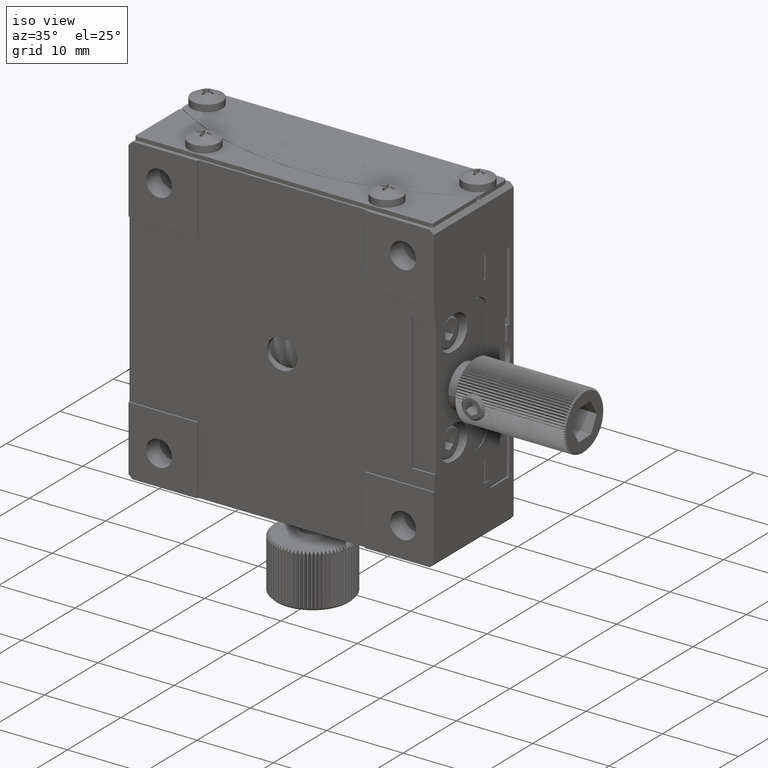
[diagram: clean part render]
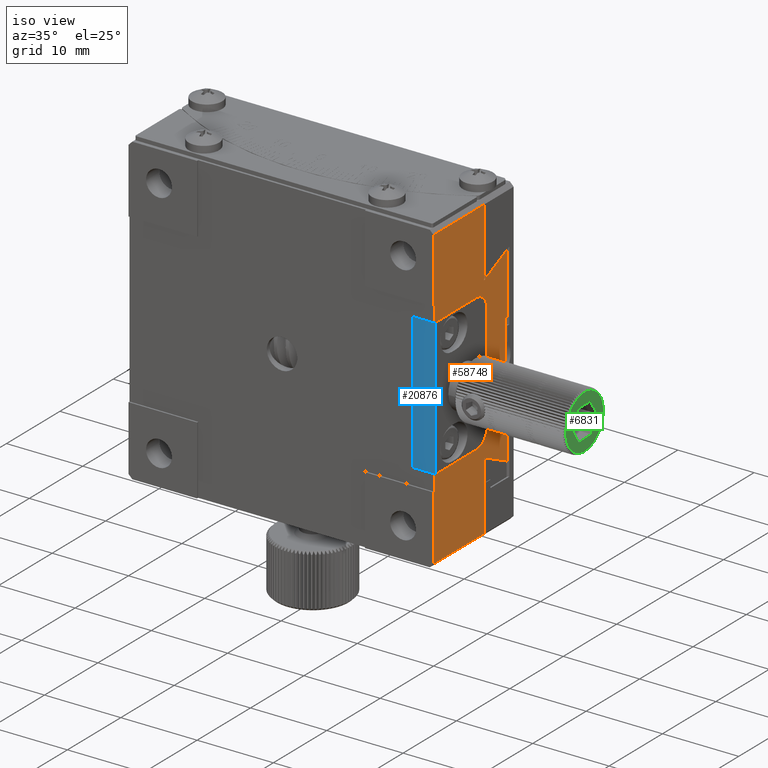
[diagram: same view with three faces highlighted in distinct colors, each labeled with its STEP entity id]
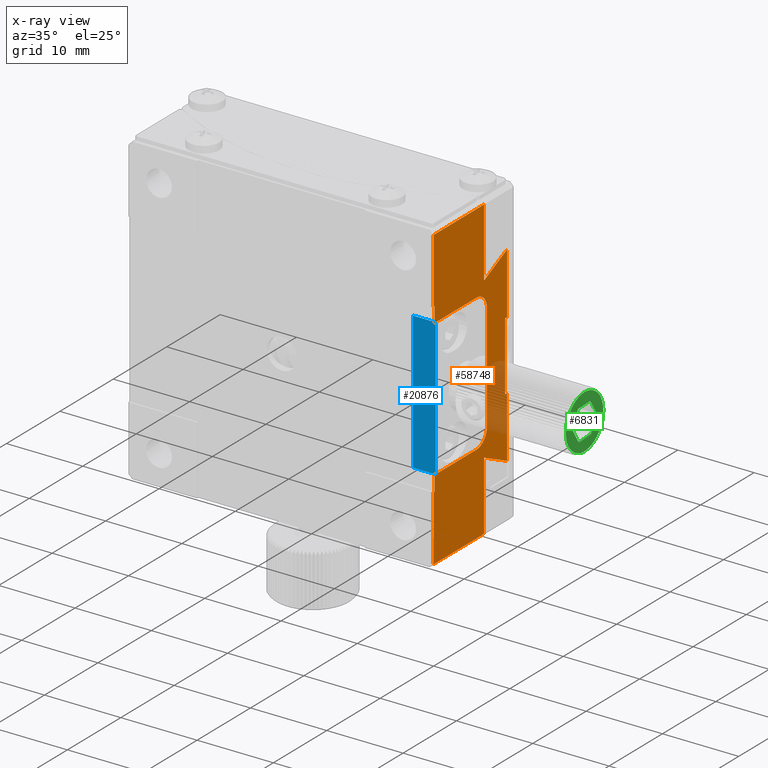
[diagram: x-ray of the same camera — body ghosted, the three highlighted faces saturated]
A machine part, iso view with three faces highlighted in distinct colors.
The next image is the same camera in x-ray (body ghosted, the three faces saturated) — at least one of them is partly hidden behind the body in this view.
Their STEP definitions:

[orange] entity #58748 — the highlighted planar face has unit normal (1, -0, 0).
#265 = DIRECTION ( 'NONE',  ( -0.000000000000000000, -1.000000000000000000, -0.000000000000000000 ) ) ;
#496 = CARTESIAN_POINT ( 'NONE',  ( 20.00000000000000000, -26.24880949681337228, 20.00000000000000711 ) ) ;
#710 = CARTESIAN_POINT ( 'NONE',  ( 20.00000000000000000, -30.00000000000000000, 7.000000000000000888 ) ) ;
#1247 = DIRECTION ( 'NONE',  ( -0.000000000000000000, -1.000000000000000000, -0.000000000000000000 ) ) ;
#1957 = ORIENTED_EDGE ( 'NONE', *, *, #55861, .T. ) ;
#2024 = VERTEX_POINT ( 'NONE', #18728 ) ;
#2564 = CIRCLE ( 'NONE', #35523, 2.000000000000000000 ) ;
#2676 = DIRECTION ( 'NONE',  ( 0.000000000000000000, 1.000000000000000000, 0.000000000000000000 ) ) ;
#3041 = LINE ( 'NONE', #13698, #15178 ) ;
#3327 = VECTOR ( 'NONE', #10914, 1000.000000000000000 ) ;
#3868 = DIRECTION ( 'NONE',  ( -0.000000000000000000, -1.000000000000000000, -0.000000000000000000 ) ) ;
#4238 = ORIENTED_EDGE ( 'NONE', *, *, #17137, .T. ) ;
#4653 = VERTEX_POINT ( 'NONE', #40001 ) ;
#4813 = LINE ( 'NONE', #58354, #29127 ) ;
#5217 = CARTESIAN_POINT ( 'NONE',  ( 20.00000000000000000, -26.24880949681337228, -4.500000000000003553 ) ) ;
#5312 = CARTESIAN_POINT ( 'NONE',  ( 20.00000000000000000, -33.00000000000000000, 4.499999999999995559 ) ) ;
#5451 = DIRECTION ( 'NONE',  ( -0.000000000000000000, -0.000000000000000000, 1.000000000000000000 ) ) ;
#5660 = VECTOR ( 'NONE', #265, 1000.000000000000000 ) ;
#6322 = CARTESIAN_POINT ( 'NONE',  ( 20.00000000000000000, -26.24880949681337228, 12.52072594216371115 ) ) ;
#7470 = CARTESIAN_POINT ( 'NONE',  ( 20.00000000000000000, -26.24880949681337228, 12.52072594216371115 ) ) ;
#7916 = VERTEX_POINT ( 'NONE', #33192 ) ;
#8042 = VERTEX_POINT ( 'NONE', #46348 ) ;
#8298 = DIRECTION ( 'NONE',  ( -0.000000000000000000, -1.000000000000000000, -0.000000000000000000 ) ) ;
#8301 = CARTESIAN_POINT ( 'NONE',  ( 20.00000000000000000, -32.00000000000000000, -6.999999999999999112 ) ) ;
#8436 = LINE ( 'NONE', #52911, #51093 ) ;
#8559 = VECTOR ( 'NONE', #2676, 1000.000000000000000 ) ;
#8849 = EDGE_CURVE ( 'NONE', #52809, #40727, #4813, .T. ) ;
#9060 = EDGE_CURVE ( 'NONE', #40727, #50186, #19981, .T. ) ;
#9525 = ORIENTED_EDGE ( 'NONE', *, *, #26355, .T. ) ;
#9736 = CARTESIAN_POINT ( 'NONE',  ( 20.00000000000000000, -29.11096313709389705, -11.18667793260862098 ) ) ;
#9939 = CARTESIAN_POINT ( 'NONE',  ( 20.00000000000000355, -39.80000000000000426, 1.734723475976807094E-15 ) ) ;
#10249 = VERTEX_POINT ( 'NONE', #21628 ) ;
#10268 = LINE ( 'NONE', #9939, #3327 ) ;
#10316 = CARTESIAN_POINT ( 'NONE',  ( 20.00000000000000000, -26.62498826290821441, 20.00000000000000711 ) ) ;
#10914 = DIRECTION ( 'NONE',  ( -0.000000000000000000, 0.000000000000000000, 1.000000000000000000 ) ) ;
#11206 = EDGE_CURVE ( 'NONE', #62408, #28379, #53214, .T. ) ;
#11360 = VERTEX_POINT ( 'NONE', #710 ) ;
#11391 = EDGE_CURVE ( 'NONE', #61510, #17384, #35510, .T. ) ;
#11707 = DIRECTION ( 'NONE',  ( -0.000000000000000000, -0.000000000000000000, 1.000000000000000000 ) ) ;
#11927 = B_SPLINE_CURVE_WITH_KNOTS ( 'NONE', 3,
 ( #6322, #35352, #55651, #26000 ),
 .UNSPECIFIED., .F., .F.,
 ( 4, 4 ),
 ( 0.000000000000000000, 0.004736627995792279562 ),
 .UNSPECIFIED. ) ;
#12702 = CARTESIAN_POINT ( 'NONE',  ( 20.00000000000000000, -39.80000000000000426, 9.000000000000003553 ) ) ;
#12827 = DIRECTION ( 'NONE',  ( 0.000000000000000000, 0.000000000000000000, 1.000000000000000000 ) ) ;
#13115 = EDGE_LOOP ( 'NONE', ( #34065, #21022, #41151, #9525, #28283, #30133, #1957, #51350, #37699, #31891, #33957, #24161, #13630, #36443, #50262, #24119, #37633, #32287, #30096, #34359, #4238, #36426 ) ) ;
#13630 = ORIENTED_EDGE ( 'NONE', *, *, #27520, .T. ) ;
#13698 = CARTESIAN_POINT ( 'NONE',  ( 20.00000000000000000, -40.00000000000000000, 20.00000000000000711 ) ) ;
#13768 = CARTESIAN_POINT ( 'NONE',  ( 20.00000000000000000, -26.24880949681337228, -12.52072594216371471 ) ) ;
#13938 = DIRECTION ( 'NONE',  ( -0.000000000000000000, -0.000000000000000000, 1.000000000000000000 ) ) ;
#14515 = LINE ( 'NONE', #48337, #17900 ) ;
#14580 = CARTESIAN_POINT ( 'NONE',  ( 20.00000000000000000, -26.24880949681337228, 20.00000000000000711 ) ) ;
#15178 = VECTOR ( 'NONE', #38156, 1000.000000000000000 ) ;
#15665 = VECTOR ( 'NONE', #44630, 1000.000000000000000 ) ;
#15885 = CARTESIAN_POINT ( 'NONE',  ( 20.00000000000000000, -30.00000000000000000, 20.00000000000000711 ) ) ;
#16311 = EDGE_CURVE ( 'NONE', #28764, #24738, #11927, .T. ) ;
#16323 = VERTEX_POINT ( 'NONE', #40162 ) ;
#16588 = EDGE_CURVE ( 'NONE', #11360, #10249, #40981, .T. ) ;
#17137 = EDGE_CURVE ( 'NONE', #10249, #7916, #30845, .T. ) ;
#17353 = DIRECTION ( 'NONE',  ( -1.000000000000000000, 0.000000000000000000, 0.000000000000000000 ) ) ;
#17384 = VERTEX_POINT ( 'NONE', #58249 ) ;
#17704 = EDGE_CURVE ( 'NONE', #20217, #20275, #10268, .T. ) ;
#17900 = VECTOR ( 'NONE', #62542, 1000.000000000000000 ) ;
#18060 = VECTOR ( 'NONE', #50322, 1000.000000000000000 ) ;
#18579 = FACE_OUTER_BOUND ( 'NONE', #13115, .T. ) ;
#18728 = CARTESIAN_POINT ( 'NONE',  ( 20.00000000000000000, -30.53276928154405212, 19.50000000000000711 ) ) ;
#18961 = VERTEX_POINT ( 'NONE', #58406 ) ;
#19229 = CARTESIAN_POINT ( 'NONE',  ( 20.00000000000000000, -30.53276928154405567, 20.00000000000000711 ) ) ;
#19297 = EDGE_CURVE ( 'NONE', #4653, #18961, #14515, .T. ) ;
#19604 = EDGE_CURVE ( 'NONE', #7916, #20275, #45369, .T. ) ;
#19729 = EDGE_CURVE ( 'NONE', #17384, #18961, #31511, .T. ) ;
#19921 = VECTOR ( 'NONE', #5451, 1000.000000000000000 ) ;
#19981 = LINE ( 'NONE', #10316, #19921 ) ;
#20217 = VERTEX_POINT ( 'NONE', #62683 ) ;
#20275 = VERTEX_POINT ( 'NONE', #58801 ) ;
#21015 = EDGE_CURVE ( 'NONE', #25351, #28764, #58069, .T. ) ;
#21022 = ORIENTED_EDGE ( 'NONE', *, *, #54596, .T. ) ;
#21124 = DIRECTION ( 'NONE',  ( 0.000000000000000000, 0.000000000000000000, -1.000000000000000000 ) ) ;
#21628 = CARTESIAN_POINT ( 'NONE',  ( 20.00000000000000000, -30.00000000000000000, -6.999999999999999112 ) ) ;
#22180 = CARTESIAN_POINT ( 'NONE',  ( 20.00000000000000000, -39.80000000000000426, 11.00000000000000711 ) ) ;
#22955 = CARTESIAN_POINT ( 'NONE',  ( 20.00000000000000000, -30.53276928154405567, 20.00000000000000711 ) ) ;
#23174 = LINE ( 'NONE', #47337, #25702 ) ;
#24119 = ORIENTED_EDGE ( 'NONE', *, *, #19729, .F. ) ;
#24161 = ORIENTED_EDGE ( 'NONE', *, *, #16311, .T. ) ;
#24738 = VERTEX_POINT ( 'NONE', #29725 ) ;
#25351 = VERTEX_POINT ( 'NONE', #41825 ) ;
#25417 = CARTESIAN_POINT ( 'NONE',  ( 20.00000000000000000, -26.24880949681337228, -9.000000000000005329 ) ) ;
#25702 = VECTOR ( 'NONE', #42178, 1000.000000000000000 ) ;
#26000 = CARTESIAN_POINT ( 'NONE',  ( 20.00000000000000000, -30.53276928154405567, 10.50000000000000000 ) ) ;
#26355 = EDGE_CURVE ( 'NONE', #31128, #8042, #51990, .T. ) ;
#27369 = VECTOR ( 'NONE', #29211, 1000.000000000000000 ) ;
#27520 = EDGE_CURVE ( 'NONE', #24738, #2024, #58061, .T. ) ;
#28283 = ORIENTED_EDGE ( 'NONE', *, *, #55036, .T. ) ;
#28379 = VERTEX_POINT ( 'NONE', #13768 ) ;
#28730 = CARTESIAN_POINT ( 'NONE',  ( 20.00000000000000000, -32.00000000000000000, 7.000000000000000888 ) ) ;
#28764 = VERTEX_POINT ( 'NONE', #7470 ) ;
#28824 = CARTESIAN_POINT ( 'NONE',  ( 20.00000000000000000, -40.00000000000000000, -11.00000000000000355 ) ) ;
#29127 = VECTOR ( 'NONE', #3868, 1000.000000000000000 ) ;
#29211 = DIRECTION ( 'NONE',  ( -0.000000000000000000, -0.000000000000000000, 1.000000000000000000 ) ) ;
#29725 = CARTESIAN_POINT ( 'NONE',  ( 20.00000000000000000, -30.53276928154405567, 10.50000000000000000 ) ) ;
#30096 = ORIENTED_EDGE ( 'NONE', *, *, #34685, .T. ) ;
#30133 = ORIENTED_EDGE ( 'NONE', *, *, #11206, .T. ) ;
#30672 = DIRECTION ( 'NONE',  ( 0.000000000000000000, 0.000000000000000000, -1.000000000000000000 ) ) ;
#30765 = DIRECTION ( 'NONE',  ( 1.000000000000000000, -0.000000000000000000, 0.000000000000000000 ) ) ;
#30845 = CIRCLE ( 'NONE', #39083, 2.000000000000000000 ) ;
#31128 = VERTEX_POINT ( 'NONE', #57503 ) ;
#31511 = LINE ( 'NONE', #22180, #53949 ) ;
#31891 = ORIENTED_EDGE ( 'NONE', *, *, #38785, .T. ) ;
#32287 = ORIENTED_EDGE ( 'NONE', *, *, #50193, .T. ) ;
#33142 = CARTESIAN_POINT ( 'NONE',  ( 20.00000000000000000, -26.62498826290821441, 4.499999999999996447 ) ) ;
#33192 = CARTESIAN_POINT ( 'NONE',  ( 20.00000000000000000, -32.00000000000000000, -9.000000000000005329 ) ) ;
#33901 = CARTESIAN_POINT ( 'NONE',  ( 20.00000000000000000, -27.68369492888146155, -11.86177623385260915 ) ) ;
#33957 = ORIENTED_EDGE ( 'NONE', *, *, #21015, .T. ) ;
#34065 = ORIENTED_EDGE ( 'NONE', *, *, #17704, .F. ) ;
#34339 = VECTOR ( 'NONE', #53542, 1000.000000000000000 ) ;
#34359 = ORIENTED_EDGE ( 'NONE', *, *, #16588, .T. ) ;
#34685 = EDGE_CURVE ( 'NONE', #16323, #11360, #2564, .T. ) ;
#35352 = CARTESIAN_POINT ( 'NONE',  ( 20.00000000000000000, -27.68369492888145800, 11.86177623385260915 ) ) ;
#35510 = LINE ( 'NONE', #40314, #18060 ) ;
#35523 = AXIS2_PLACEMENT_3D ( 'NONE', #28730, #53220, #43519 ) ;
#36426 = ORIENTED_EDGE ( 'NONE', *, *, #19604, .T. ) ;
#36443 = ORIENTED_EDGE ( 'NONE', *, *, #57121, .T. ) ;
#37633 = ORIENTED_EDGE ( 'NONE', *, *, #11391, .F. ) ;
#37699 = ORIENTED_EDGE ( 'NONE', *, *, #9060, .T. ) ;
#38102 = CARTESIAN_POINT ( 'NONE',  ( 20.00000000000000000, -26.24880949681337228, -12.52072594216371471 ) ) ;
#38156 = DIRECTION ( 'NONE',  ( 0.000000000000000000, 0.000000000000000000, -1.000000000000000000 ) ) ;
#38785 = EDGE_CURVE ( 'NONE', #50186, #25351, #59805, .T. ) ;
#39083 = AXIS2_PLACEMENT_3D ( 'NONE', #8301, #17353, #12827 ) ;
#40001 = CARTESIAN_POINT ( 'NONE',  ( 20.00000000000000000, -40.00000000000000000, 19.50000000000000711 ) ) ;
#40162 = CARTESIAN_POINT ( 'NONE',  ( 20.00000000000000000, -32.00000000000000000, 9.000000000000003553 ) ) ;
#40314 = CARTESIAN_POINT ( 'NONE',  ( 20.00000000000000000, -39.80000000000000426, 1.734723475976807094E-15 ) ) ;
#40727 = VERTEX_POINT ( 'NONE', #44412 ) ;
#40981 = LINE ( 'NONE', #15885, #49492 ) ;
#41151 = ORIENTED_EDGE ( 'NONE', *, *, #45060, .T. ) ;
#41825 = CARTESIAN_POINT ( 'NONE',  ( 20.00000000000000000, -26.24880949681337228, 4.499999999999995559 ) ) ;
#42178 = DIRECTION ( 'NONE',  ( 0.000000000000000000, 1.000000000000000000, 0.000000000000000000 ) ) ;
#42962 = AXIS2_PLACEMENT_3D ( 'NONE', #496, #30765, #21124 ) ;
#43215 = DIRECTION ( 'NONE',  ( -0.000000000000000000, -1.000000000000000000, -0.000000000000000000 ) ) ;
#43519 = DIRECTION ( 'NONE',  ( 0.000000000000000000, 0.000000000000000000, 1.000000000000000000 ) ) ;
#44412 = CARTESIAN_POINT ( 'NONE',  ( 20.00000000000000000, -26.62498826290821441, -4.500000000000003553 ) ) ;
#44623 = PLANE ( 'NONE',  #42962 ) ;
#44630 = DIRECTION ( 'NONE',  ( -0.000000000000000000, 1.000000000000000000, 0.000000000000000000 ) ) ;
#45060 = EDGE_CURVE ( 'NONE', #45126, #31128, #3041, .T. ) ;
#45126 = VERTEX_POINT ( 'NONE', #28824 ) ;
#45369 = LINE ( 'NONE', #25417, #54953 ) ;
#46348 = CARTESIAN_POINT ( 'NONE',  ( 20.00000000000000000, -30.53276928154405567, -19.50000000000000355 ) ) ;
#47337 = CARTESIAN_POINT ( 'NONE',  ( 20.00000000000000000, -26.24880949681337228, 9.000000000000003553 ) ) ;
#47990 = LINE ( 'NONE', #60698, #55193 ) ;
#48098 = CARTESIAN_POINT ( 'NONE',  ( 20.00000000000000000, -26.24880949681337228, -19.50000000000000000 ) ) ;
#48337 = CARTESIAN_POINT ( 'NONE',  ( 20.00000000000000000, -40.00000000000000000, 20.00000000000000711 ) ) ;
#49261 = CARTESIAN_POINT ( 'NONE',  ( 20.00000000000000000, -26.24880949681337228, -11.00000000000000355 ) ) ;
#49492 = VECTOR ( 'NONE', #30672, 1000.000000000000000 ) ;
#50186 = VERTEX_POINT ( 'NONE', #33142 ) ;
#50193 = EDGE_CURVE ( 'NONE', #61510, #16323, #23174, .T. ) ;
#50262 = ORIENTED_EDGE ( 'NONE', *, *, #19297, .T. ) ;
#50322 = DIRECTION ( 'NONE',  ( -0.000000000000000000, 0.000000000000000000, 1.000000000000000000 ) ) ;
#51093 = VECTOR ( 'NONE', #43215, 1000.000000000000000 ) ;
#51350 = ORIENTED_EDGE ( 'NONE', *, *, #8849, .T. ) ;
#51990 = LINE ( 'NONE', #48098, #8559 ) ;
#52809 = VERTEX_POINT ( 'NONE', #5217 ) ;
#52911 = CARTESIAN_POINT ( 'NONE',  ( 20.00000000000000000, -26.24880949681337228, 19.50000000000000711 ) ) ;
#53214 = B_SPLINE_CURVE_WITH_KNOTS ( 'NONE', 3,
 ( #58091, #9736, #33901, #38102 ),
 .UNSPECIFIED., .F., .F.,
 ( 4, 4 ),
 ( 0.000000000000000000, 0.004736627995792282164 ),
 .UNSPECIFIED. ) ;
#53220 = DIRECTION ( 'NONE',  ( -1.000000000000000000, 0.000000000000000000, 0.000000000000000000 ) ) ;
#53542 = DIRECTION ( 'NONE',  ( -0.000000000000000000, -0.000000000000000000, 1.000000000000000000 ) ) ;
#53949 = VECTOR ( 'NONE', #8298, 1000.000000000000000 ) ;
#54573 = VECTOR ( 'NONE', #13938, 1000.000000000000000 ) ;
#54596 = EDGE_CURVE ( 'NONE', #20217, #45126, #58301, .T. ) ;
#54953 = VECTOR ( 'NONE', #1247, 1000.000000000000000 ) ;
#55036 = EDGE_CURVE ( 'NONE', #8042, #62408, #58225, .T. ) ;
#55193 = VECTOR ( 'NONE', #11707, 1000.000000000000000 ) ;
#55651 = CARTESIAN_POINT ( 'NONE',  ( 20.00000000000000000, -29.11096313709389705, 11.18667793260862098 ) ) ;
#55861 = EDGE_CURVE ( 'NONE', #28379, #52809, #47990, .T. ) ;
#57121 = EDGE_CURVE ( 'NONE', #2024, #4653, #8436, .T. ) ;
#57503 = CARTESIAN_POINT ( 'NONE',  ( 20.00000000000000000, -40.00000000000000000, -19.50000000000000000 ) ) ;
#57876 = CARTESIAN_POINT ( 'NONE',  ( 20.00000000000000000, -30.53276928154405567, -10.49999999999999822 ) ) ;
#58061 = LINE ( 'NONE', #22955, #54573 ) ;
#58069 = LINE ( 'NONE', #14580, #34339 ) ;
#58091 = CARTESIAN_POINT ( 'NONE',  ( 20.00000000000000000, -30.53276928154405567, -10.49999999999999822 ) ) ;
#58225 = LINE ( 'NONE', #19229, #27369 ) ;
#58249 = CARTESIAN_POINT ( 'NONE',  ( 20.00000000000000000, -39.80000000000000426, 11.00000000000000711 ) ) ;
#58301 = LINE ( 'NONE', #49261, #5660 ) ;
#58354 = CARTESIAN_POINT ( 'NONE',  ( 20.00000000000000000, -33.00000000000000000, -4.500000000000003553 ) ) ;
#58406 = CARTESIAN_POINT ( 'NONE',  ( 20.00000000000000000, -40.00000000000000000, 11.00000000000000533 ) ) ;
#58748 = ADVANCED_FACE ( 'NONE', ( #18579 ), #44623, .T. ) ;
#58801 = CARTESIAN_POINT ( 'NONE',  ( 20.00000000000000000, -39.80000000000000426, -9.000000000000005329 ) ) ;
#59805 = LINE ( 'NONE', #5312, #15665 ) ;
#60698 = CARTESIAN_POINT ( 'NONE',  ( 20.00000000000000000, -26.24880949681337228, 20.00000000000000711 ) ) ;
#61510 = VERTEX_POINT ( 'NONE', #12702 ) ;
#62408 = VERTEX_POINT ( 'NONE', #57876 ) ;
#62542 = DIRECTION ( 'NONE',  ( 0.000000000000000000, 0.000000000000000000, -1.000000000000000000 ) ) ;
#62683 = CARTESIAN_POINT ( 'NONE',  ( 20.00000000000000355, -39.80000000000000426, -11.00000000000000178 ) ) ;

[blue] entity #20876 — the highlighted planar face has unit normal (0, 1, 0).
#6847 = VERTEX_POINT ( 'NONE', #60360 ) ;
#7642 = EDGE_CURVE ( 'NONE', #6847, #58104, #31047, .T. ) ;
#7892 = LINE ( 'NONE', #52051, #27707 ) ;
#12181 = ORIENTED_EDGE ( 'NONE', *, *, #13682, .F. ) ;
#12367 = CARTESIAN_POINT ( 'NONE',  ( 20.00000000000000355, -39.59999999999999432, -9.000000000000000000 ) ) ;
#12427 = DIRECTION ( 'NONE',  ( -0.000000000000000000, 0.000000000000000000, -1.000000000000000000 ) ) ;
#13682 = EDGE_CURVE ( 'NONE', #57640, #6847, #7892, .T. ) ;
#15429 = CARTESIAN_POINT ( 'NONE',  ( 20.00000000000000355, -39.59999999999999432, 9.000000000000003553 ) ) ;
#15919 = CARTESIAN_POINT ( 'NONE',  ( 17.00000000000000355, -39.59999999999999432, 9.000000000000003553 ) ) ;
#16063 = ORIENTED_EDGE ( 'NONE', *, *, #42553, .F. ) ;
#17491 = CARTESIAN_POINT ( 'NONE',  ( 20.00000000000000355, -39.59999999999999432, 9.000000000000003553 ) ) ;
#20876 = ADVANCED_FACE ( 'NONE', ( #27161 ), #42912, .F. ) ;
#21676 = ORIENTED_EDGE ( 'NONE', *, *, #7642, .F. ) ;
#24911 = LINE ( 'NONE', #49403, #58757 ) ;
#26868 = DIRECTION ( 'NONE',  ( -1.000000000000000000, -0.000000000000000000, 0.000000000000000000 ) ) ;
#27161 = FACE_OUTER_BOUND ( 'NONE', #57430, .T. ) ;
#27707 = VECTOR ( 'NONE', #12427, 1000.000000000000000 ) ;
#30547 = LINE ( 'NONE', #15429, #30992 ) ;
#30992 = VECTOR ( 'NONE', #54723, 1000.000000000000000 ) ;
#31047 = LINE ( 'NONE', #12367, #63033 ) ;
#34490 = AXIS2_PLACEMENT_3D ( 'NONE', #17491, #62599, #41964 ) ;
#35540 = DIRECTION ( 'NONE',  ( 0.000000000000000000, 0.000000000000000000, 1.000000000000000000 ) ) ;
#38377 = EDGE_CURVE ( 'NONE', #57640, #43669, #30547, .T. ) ;
#38915 = ORIENTED_EDGE ( 'NONE', *, *, #38377, .T. ) ;
#41964 = DIRECTION ( 'NONE',  ( 0.000000000000000000, -0.000000000000000000, 1.000000000000000000 ) ) ;
#42553 = EDGE_CURVE ( 'NONE', #58104, #43669, #24911, .T. ) ;
#42912 = PLANE ( 'NONE',  #34490 ) ;
#43669 = VERTEX_POINT ( 'NONE', #15919 ) ;
#49323 = CARTESIAN_POINT ( 'NONE',  ( 17.00000000000000355, -39.59999999999999432, -9.000000000000000000 ) ) ;
#49403 = CARTESIAN_POINT ( 'NONE',  ( 17.00000000000000355, -39.59999999999999432, 9.000000000000003553 ) ) ;
#51159 = CARTESIAN_POINT ( 'NONE',  ( 20.00000000000000355, -39.59999999999999432, 9.000000000000003553 ) ) ;
#52051 = CARTESIAN_POINT ( 'NONE',  ( 20.00000000000000355, -39.59999999999999432, 9.000000000000003553 ) ) ;
#54723 = DIRECTION ( 'NONE',  ( -1.000000000000000000, 0.000000000000000000, -0.000000000000000000 ) ) ;
#57430 = EDGE_LOOP ( 'NONE', ( #21676, #12181, #38915, #16063 ) ) ;
#57640 = VERTEX_POINT ( 'NONE', #51159 ) ;
#58104 = VERTEX_POINT ( 'NONE', #49323 ) ;
#58757 = VECTOR ( 'NONE', #35540, 1000.000000000000000 ) ;
#60360 = CARTESIAN_POINT ( 'NONE',  ( 20.00000000000000355, -39.59999999999999432, -9.000000000000000000 ) ) ;
#62599 = DIRECTION ( 'NONE',  ( 0.000000000000000000, 1.000000000000000000, 0.000000000000000000 ) ) ;
#63033 = VECTOR ( 'NONE', #26868, 1000.000000000000000 ) ;

[green] entity #6831 — the highlighted planar face has unit normal (-1, 0, -0).
#204 = ORIENTED_EDGE ( 'NONE', *, *, #57441, .F. ) ;
#232 = CIRCLE ( 'NONE', #2304, 3.499999999978686827 ) ;
#303 = CARTESIAN_POINT ( 'NONE',  ( 36.50000000000003553, -32.02317795278089108, 1.229811884277221656 ) ) ;
#346 = DIRECTION ( 'NONE',  ( -1.000000000000000000, 8.971449991337846831E-16, -8.365187503271700627E-16 ) ) ;
#495 = CARTESIAN_POINT ( 'NONE',  ( 36.50000000000003553, -34.52117673115765939, 3.412247692615610895 ) ) ;
#626 = VERTEX_POINT ( 'NONE', #17881 ) ;
#683 = CARTESIAN_POINT ( 'NONE',  ( 36.49999999998963318, -35.30000000000001137, 1.082660023096705789E-14 ) ) ;
#696 = CARTESIAN_POINT ( 'NONE',  ( 36.50000000000003553, -36.67558761078037577, 3.218347203910475240 ) ) ;
#727 = EDGE_CURVE ( 'NONE', #47707, #42782, #41958, .T. ) ;
#895 = CARTESIAN_POINT ( 'NONE',  ( 36.49999999998963318, -35.30000000000001137, 1.082660023096705789E-14 ) ) ;
#1136 = DIRECTION ( 'NONE',  ( -1.000000000000000000, 8.971449991337846831E-16, -8.365187503271700627E-16 ) ) ;
#1208 = ORIENTED_EDGE ( 'NONE', *, *, #20557, .F. ) ;
#1312 = EDGE_CURVE ( 'NONE', #40650, #31450, #61585, .T. ) ;
#1475 = DIRECTION ( 'NONE',  ( -1.000000000000000000, 8.971449991337846831E-16, -8.365187503271700627E-16 ) ) ;
#1493 = ORIENTED_EDGE ( 'NONE', *, *, #35710, .F. ) ;
#1532 = CARTESIAN_POINT ( 'NONE',  ( 36.49999999998963318, -35.30000000000001137, 1.082660023096705789E-14 ) ) ;
#1606 = DIRECTION ( 'NONE',  ( 0.000000000000000000, -1.000000000000000000, 0.000000000000000000 ) ) ;
#1725 = CARTESIAN_POINT ( 'NONE',  ( 36.50000000000003553, -35.45702690622582054, -3.496475732873288500 ) ) ;
#2240 = EDGE_CURVE ( 'NONE', #55646, #35817, #62678, .T. ) ;
#2304 = AXIS2_PLACEMENT_3D ( 'NONE', #27818, #42932, #48422 ) ;
#2364 = VERTEX_POINT ( 'NONE', #39249 ) ;
#2372 = CARTESIAN_POINT ( 'NONE',  ( 36.50000000000003553, -32.88128072856068229, -2.529782023380420242 ) ) ;
#2420 = CARTESIAN_POINT ( 'NONE',  ( 36.49999999998963318, -35.30000000000001137, 1.082660023096705789E-14 ) ) ;
#2437 = DIRECTION ( 'NONE',  ( 0.000000000000000000, -0.4694281332946967367, -0.8829706833589983095 ) ) ;
#2479 = CARTESIAN_POINT ( 'NONE',  ( 36.49999999998963318, -35.30000000000001137, 1.082660023096705789E-14 ) ) ;
#2504 = CIRCLE ( 'NONE', #10763, 3.499999999978686827 ) ;
#2567 = DIRECTION ( 'NONE',  ( 0.000000000000000000, -1.000000000000000000, 0.000000000000000000 ) ) ;
#2575 = EDGE_CURVE ( 'NONE', #28422, #32245, #31787, .T. ) ;
#2669 = DIRECTION ( 'NONE',  ( 0.000000000000000000, -1.000000000000000000, 0.000000000000000000 ) ) ;
#2719 = CARTESIAN_POINT ( 'NONE',  ( 36.50000000000002842, -34.21590216350850255, 2.039133446895472268 ) ) ;
#2793 = CIRCLE ( 'NONE', #62525, 3.499999999978686827 ) ;
#2803 = VERTEX_POINT ( 'NONE', #38851 ) ;
#3024 = CARTESIAN_POINT ( 'NONE',  ( 36.50000000000002842, -36.38409783649152018, -2.039133446895450064 ) ) ;
#3064 = EDGE_CURVE ( 'NONE', #21088, #33989, #57614, .T. ) ;
#3090 = CIRCLE ( 'NONE', #52513, 3.499999999978686827 ) ;
#3222 = CARTESIAN_POINT ( 'NONE',  ( 36.49999999998963318, -35.30000000000001137, 1.082660023096705789E-14 ) ) ;
#3303 = DIRECTION ( 'NONE',  ( 0.000000000000000000, -1.000000000000000000, 0.000000000000000000 ) ) ;
#3409 = ORIENTED_EDGE ( 'NONE', *, *, #16434, .F. ) ;
#3560 = CIRCLE ( 'NONE', #27216, 3.499999999978686827 ) ;
#3648 = DIRECTION ( 'NONE',  ( 0.000000000000000000, -1.000000000000000000, 0.000000000000000000 ) ) ;
#3675 = EDGE_CURVE ( 'NONE', #33989, #4380, #14437, .T. ) ;
#3689 = AXIS2_PLACEMENT_3D ( 'NONE', #59368, #44192, #49368 ) ;
#3798 = EDGE_CURVE ( 'NONE', #19272, #26955, #60809, .T. ) ;
#3910 = CARTESIAN_POINT ( 'NONE',  ( 36.49999999998963318, -35.30000000000001137, 1.082660023096705789E-14 ) ) ;
#3963 = CARTESIAN_POINT ( 'NONE',  ( 36.50000000000003553, -36.95854031864536893, -3.082084361479813683 ) ) ;
#4062 = DIRECTION ( 'NONE',  ( -1.000000000000000000, 8.971449991337846831E-16, -8.365187503271700627E-16 ) ) ;
#4076 = CARTESIAN_POINT ( 'NONE',  ( 36.49999999998963318, -35.30000000000001137, 1.082660023096705789E-14 ) ) ;
#4293 = CARTESIAN_POINT ( 'NONE',  ( 36.50000000000003553, -32.66424986900339178, -2.302785540774923145 ) ) ;
#4299 = AXIS2_PLACEMENT_3D ( 'NONE', #58805, #54288, #29489 ) ;
#4380 = VERTEX_POINT ( 'NONE', #16276 ) ;
#4457 = CIRCLE ( 'NONE', #14812, 3.499999999978686827 ) ;
#4517 = CARTESIAN_POINT ( 'NONE',  ( 36.49999999998963318, -35.30000000000001137, 1.082660023096705789E-14 ) ) ;
#4547 = AXIS2_PLACEMENT_3D ( 'NONE', #16383, #5713, #39876 ) ;
#4560 = CIRCLE ( 'NONE', #42654, 3.499999999978686827 ) ;
#4565 = DIRECTION ( 'NONE',  ( -1.000000000000000000, 8.971449991337846831E-16, -8.365187503271700627E-16 ) ) ;
#4881 = CIRCLE ( 'NONE', #23454, 3.499999999978686827 ) ;
#5026 = VERTEX_POINT ( 'NONE', #44053 ) ;
#5037 = VERTEX_POINT ( 'NONE', #43744 ) ;
#5170 = DIRECTION ( 'NONE',  ( -1.000000000000000000, 8.971449991337846831E-16, -8.365187503271700627E-16 ) ) ;
#5241 = CARTESIAN_POINT ( 'NONE',  ( 36.50000000000003553, -37.22813943507058099, -2.921006388006772703 ) ) ;
#5366 = DIRECTION ( 'NONE',  ( 0.000000000000000000, -1.000000000000000000, 0.000000000000000000 ) ) ;
#5638 = DIRECTION ( 'NONE',  ( 0.000000000000000000, -1.000000000000000000, 0.000000000000000000 ) ) ;
#5713 = DIRECTION ( 'NONE',  ( -1.000000000000000000, 8.971449991337846831E-16, -8.365187503271700627E-16 ) ) ;
#5809 = DIRECTION ( 'NONE',  ( 0.000000000000000000, -1.000000000000000000, 0.000000000000000000 ) ) ;
#5902 = CARTESIAN_POINT ( 'NONE',  ( 36.50000000000003553, -36.95854031864541156, 3.082084361479810131 ) ) ;
#6159 = DIRECTION ( 'NONE',  ( -1.000000000000000000, 8.971449991337846831E-16, -8.365187503271700627E-16 ) ) ;
#6279 = CARTESIAN_POINT ( 'NONE',  ( 36.50000000000003553, -37.71871927143930492, 2.529782023380461986 ) ) ;
#6316 = ORIENTED_EDGE ( 'NONE', *, *, #58347, .F. ) ;
#6360 = CARTESIAN_POINT ( 'NONE',  ( 36.50000000000003553, -31.81408997103789815, -0.3137375811600460196 ) ) ;
#6410 = CIRCLE ( 'NONE', #24920, 3.499999999978686827 ) ;
#6422 = EDGE_CURVE ( 'NONE', #29220, #17052, #57782, .T. ) ;
#6547 = CIRCLE ( 'NONE', #60085, 3.499999999978686827 ) ;
#6589 = CIRCLE ( 'NONE', #63193, 3.499999999978686827 ) ;
#6735 = AXIS2_PLACEMENT_3D ( 'NONE', #13848, #29618, #19307 ) ;
#6769 = CARTESIAN_POINT ( 'NONE',  ( 36.50000000000003553, -31.92612998758505327, -0.9311289594776326339 ) ) ;
#6831 = ADVANCED_FACE ( 'NONE', ( #54231, #9759 ), #49394, .F. ) ;
#6875 = CIRCLE ( 'NONE', #53215, 3.499999999978686827 ) ;
#6889 = DIRECTION ( 'NONE',  ( -1.000000000000000000, 8.971449991337846831E-16, -8.365187503271700627E-16 ) ) ;
#7087 = CARTESIAN_POINT ( 'NONE',  ( 36.49999999998963318, -35.30000000000001137, 1.082660023096705789E-14 ) ) ;
#7206 = AXIS2_PLACEMENT_3D ( 'NONE', #45625, #47457, #3303 ) ;
#7333 = CARTESIAN_POINT ( 'NONE',  ( 36.50000000000003553, -33.92441238921961855, -3.218347203910454368 ) ) ;
#7360 = VERTEX_POINT ( 'NONE', #19176 ) ;
#7432 = ORIENTED_EDGE ( 'NONE', *, *, #22144, .F. ) ;
#7456 = CARTESIAN_POINT ( 'NONE',  ( 36.50000000000003553, -33.11778569350773438, 2.736410188621449802 ) ) ;
#7480 = EDGE_CURVE ( 'NONE', #25369, #60826, #25951, .T. ) ;
#7535 = DIRECTION ( 'NONE',  ( -1.000000000000000000, 8.971449991337846831E-16, -8.365187503271700627E-16 ) ) ;
#7562 = AXIS2_PLACEMENT_3D ( 'NONE', #15145, #18689, #53472 ) ;
#7629 = DIRECTION ( 'NONE',  ( 0.000000000000000000, -1.000000000000000000, 0.000000000000000000 ) ) ;
#7750 = EDGE_CURVE ( 'NONE', #33578, #22108, #232, .T. ) ;
#7909 = DIRECTION ( 'NONE',  ( -1.000000000000000000, 8.971449991337846831E-16, -8.365187503271700627E-16 ) ) ;
#7927 = ORIENTED_EDGE ( 'NONE', *, *, #34214, .F. ) ;
#8294 = ORIENTED_EDGE ( 'NONE', *, *, #24931, .F. ) ;
#8366 = DIRECTION ( 'NONE',  ( 0.000000000000000000, -1.000000000000000000, 0.000000000000000000 ) ) ;
#8542 = EDGE_CURVE ( 'NONE', #32564, #40954, #35519, .T. ) ;
#8747 = DIRECTION ( 'NONE',  ( -1.000000000000000000, 8.971449991337846831E-16, -8.365187503271700627E-16 ) ) ;
#8919 = CIRCLE ( 'NONE', #28479, 3.499999999978686827 ) ;
#8926 = CARTESIAN_POINT ( 'NONE',  ( 36.49999999998963318, -35.30000000000001137, 1.082660023096705789E-14 ) ) ;
#9021 = DIRECTION ( 'NONE',  ( 0.000000000000000000, -1.000000000000000000, 0.000000000000000000 ) ) ;
#9116 = CIRCLE ( 'NONE', #44067, 3.499999999978686827 ) ;
#9203 = CARTESIAN_POINT ( 'NONE',  ( 36.49999999998963318, -35.30000000000001137, 1.082660023096705789E-14 ) ) ;
#9280 = VERTEX_POINT ( 'NONE', #16008 ) ;
#9321 = CARTESIAN_POINT ( 'NONE',  ( 36.49999999998963318, -35.30000000000001137, 1.082660023096705789E-14 ) ) ;
#9335 = ORIENTED_EDGE ( 'NONE', *, *, #21142, .F. ) ;
#9345 = ORIENTED_EDGE ( 'NONE', *, *, #19520, .F. ) ;
#9362 = CARTESIAN_POINT ( 'NONE',  ( 36.49999999998963318, -35.30000000000001137, 1.082660023096705789E-14 ) ) ;
#9491 = DIRECTION ( 'NONE',  ( 0.000000000000000000, -1.000000000000000000, 0.000000000000000000 ) ) ;
#9495 = CARTESIAN_POINT ( 'NONE',  ( 36.50000000000003553, -35.45702690622586317, 3.496475732873316478 ) ) ;
#9630 = ORIENTED_EDGE ( 'NONE', *, *, #26747, .F. ) ;
#9633 = CARTESIAN_POINT ( 'NONE',  ( 36.50000000000002842, -32.99200971503625368, 0.08071045685834944694 ) ) ;
#9759 = FACE_BOUND ( 'NONE', #30260, .T. ) ;
#9850 = VECTOR ( 'NONE', #52659, 1000.000000000000114 ) ;
#9922 = ORIENTED_EDGE ( 'NONE', *, *, #20128, .F. ) ;
#9934 = VERTEX_POINT ( 'NONE', #22018 ) ;
#10030 = CARTESIAN_POINT ( 'NONE',  ( 36.49999999998963318, -35.30000000000001137, 1.082660023096705789E-14 ) ) ;
#10063 = AXIS2_PLACEMENT_3D ( 'NONE', #10030, #55148, #49032 ) ;
#10076 = DIRECTION ( 'NONE',  ( -1.000000000000000000, 7.132024820642048167E-16, -2.791693342377496705E-16 ) ) ;
#10556 = EDGE_CURVE ( 'NONE', #19501, #43352, #30258, .T. ) ;
#10650 = CIRCLE ( 'NONE', #19926, 3.499999999978686827 ) ;
#10715 = CARTESIAN_POINT ( 'NONE',  ( 36.50000000000002842, -37.60799028496376195, -0.08071045685832582695 ) ) ;
#10763 = AXIS2_PLACEMENT_3D ( 'NONE', #19023, #63160, #9021 ) ;
#11010 = CARTESIAN_POINT ( 'NONE',  ( 36.50000000000002842, -34.07610755152776960, -1.958422990037112621 ) ) ;
#11040 = AXIS2_PLACEMENT_3D ( 'NONE', #49107, #62357, #23661 ) ;
#11041 = DIRECTION ( 'NONE',  ( 0.000000000000000000, 0.5299609759384497076, -0.8480220303638142942 ) ) ;
#11072 = CARTESIAN_POINT ( 'NONE',  ( 36.49999999998963318, -35.30000000000001137, 1.082660023096705789E-14 ) ) ;
#11147 = AXIS2_PLACEMENT_3D ( 'NONE', #35591, #60733, #41058 ) ;
#11342 = CIRCLE ( 'NONE', #23644, 3.499999999978686827 ) ;
#11544 = ORIENTED_EDGE ( 'NONE', *, *, #17626, .F. ) ;
#11554 = CARTESIAN_POINT ( 'NONE',  ( 36.49999999998963318, -35.30000000000001137, 1.082660023096705789E-14 ) ) ;
#11657 = ORIENTED_EDGE ( 'NONE', *, *, #23570, .F. ) ;
#11827 = CIRCLE ( 'NONE', #37501, 3.499999999978686827 ) ;
#11905 = VERTEX_POINT ( 'NONE', #45069 ) ;
#11951 = CARTESIAN_POINT ( 'NONE',  ( 36.50000000000003553, -38.78591002896211393, 0.3137375811600924269 ) ) ;
#12212 = DIRECTION ( 'NONE',  ( -1.000000000000000000, 8.971449991337846831E-16, -8.365187503271700627E-16 ) ) ;
#12377 = ORIENTED_EDGE ( 'NONE', *, *, #3675, .F. ) ;
#12511 = CARTESIAN_POINT ( 'NONE',  ( 36.49999999998963318, -35.30000000000001137, 1.082660023096705789E-14 ) ) ;
#12834 = DIRECTION ( 'NONE',  ( 0.000000000000000000, -1.000000000000000000, 0.000000000000000000 ) ) ;
#12964 = EDGE_CURVE ( 'NONE', #34108, #5037, #42992, .T. ) ;
#13195 = CARTESIAN_POINT ( 'NONE',  ( 36.50000000000003553, -37.48221430649230257, 2.736410188621439588 ) ) ;
#13667 = CARTESIAN_POINT ( 'NONE',  ( 36.49999999998963318, -35.30000000000001137, 1.082660023096705789E-14 ) ) ;
#13709 = DIRECTION ( 'NONE',  ( -1.000000000000000000, 8.971449991337846831E-16, -8.365187503271700627E-16 ) ) ;
#13848 = CARTESIAN_POINT ( 'NONE',  ( 36.49999999998963318, -35.30000000000001137, 1.082660023096705789E-14 ) ) ;
#13860 = AXIS2_PLACEMENT_3D ( 'NONE', #43163, #18703, #45867 ) ;
#13947 = DIRECTION ( 'NONE',  ( 0.000000000000000000, -1.000000000000000000, 0.000000000000000000 ) ) ;
#14035 = CARTESIAN_POINT ( 'NONE',  ( 36.50000000000003553, -36.67558761078032603, -3.218347203910475240 ) ) ;
#14054 = EDGE_CURVE ( 'NONE', #63741, #17830, #43081, .T. ) ;
#14430 = ORIENTED_EDGE ( 'NONE', *, *, #29364, .F. ) ;
#14437 = CIRCLE ( 'NONE', #22651, 3.499999999978686827 ) ;
#14456 = ORIENTED_EDGE ( 'NONE', *, *, #34320, .F. ) ;
#14561 = ORIENTED_EDGE ( 'NONE', *, *, #24033, .F. ) ;
#14651 = EDGE_CURVE ( 'NONE', #21951, #50551, #11342, .T. ) ;
#14670 = CARTESIAN_POINT ( 'NONE',  ( 36.50000000000003553, -35.14297309377412404, -3.496475732873295605 ) ) ;
#14812 = AXIS2_PLACEMENT_3D ( 'NONE', #30949, #46414, #20993 ) ;
#14823 = ORIENTED_EDGE ( 'NONE', *, *, #53734, .F. ) ;
#14911 = VECTOR ( 'NONE', #49668, 1000.000000000000000 ) ;
#14970 = CIRCLE ( 'NONE', #43739, 3.499999999978686827 ) ;
#15145 = CARTESIAN_POINT ( 'NONE',  ( 36.49999999998963318, -35.30000000000001137, 1.082660023096705789E-14 ) ) ;
#15185 = DIRECTION ( 'NONE',  ( -1.000000000000000000, 8.971449991337846831E-16, -8.365187503271700627E-16 ) ) ;
#15238 = ORIENTED_EDGE ( 'NONE', *, *, #2575, .F. ) ;
#15249 = EDGE_CURVE ( 'NONE', #45108, #9934, #30897, .T. ) ;
#15410 = CIRCLE ( 'NONE', #31833, 3.499999999978686827 ) ;
#15489 = VERTEX_POINT ( 'NONE', #23607 ) ;
#15605 = CARTESIAN_POINT ( 'NONE',  ( 36.50000000000003553, -35.76981643035890102, -3.468324166166637745 ) ) ;
#15685 = CARTESIAN_POINT ( 'NONE',  ( 36.49999999998963318, -35.30000000000001137, 1.082660023096705789E-14 ) ) ;
#15909 = CARTESIAN_POINT ( 'NONE',  ( 36.50000000000003553, -35.14297309377416667, 3.496475732873309372 ) ) ;
#16008 = CARTESIAN_POINT ( 'NONE',  ( 36.50000000000003553, -38.74375356007423221, -0.6249491317914350752 ) ) ;
#16014 = CIRCLE ( 'NONE', #6735, 3.499999999978686827 ) ;
#16273 = DIRECTION ( 'NONE',  ( 0.000000000000000000, -1.000000000000000000, 0.000000000000000000 ) ) ;
#16276 = CARTESIAN_POINT ( 'NONE',  ( 36.50000000000003553, -38.45339103763924982, -1.518593086902220168 ) ) ;
#16342 = ORIENTED_EDGE ( 'NONE', *, *, #12964, .F. ) ;
#16383 = CARTESIAN_POINT ( 'NONE',  ( 36.49999999998963318, -35.30000000000001137, 1.082660023096705789E-14 ) ) ;
#16434 = EDGE_CURVE ( 'NONE', #46025, #32615, #32877, .T. ) ;
#16459 = DIRECTION ( 'NONE',  ( 0.000000000000000000, -1.000000000000000000, 0.000000000000000000 ) ) ;
#16512 = CIRCLE ( 'NONE', #41179, 3.499999999978686827 ) ;
#16582 = CARTESIAN_POINT ( 'NONE',  ( 36.49999999998963318, -35.30000000000001137, 1.082660023096705789E-14 ) ) ;
#16620 = DIRECTION ( 'NONE',  ( 0.000000000000000000, -1.000000000000000000, 0.000000000000000000 ) ) ;
#16697 = DIRECTION ( 'NONE',  ( -1.000000000000000000, 8.971449991337846831E-16, -8.365187503271700627E-16 ) ) ;
#17001 = VECTOR ( 'NONE', #59922, 1000.000000000000227 ) ;
#17052 = VERTEX_POINT ( 'NONE', #696 ) ;
#17062 = CARTESIAN_POINT ( 'NONE',  ( 36.50000000000003553, -32.02317795278086976, -1.229811884277155709 ) ) ;
#17209 = AXIS2_PLACEMENT_3D ( 'NONE', #48308, #32201, #23828 ) ;
#17514 = ORIENTED_EDGE ( 'NONE', *, *, #21274, .F. ) ;
#17626 = EDGE_CURVE ( 'NONE', #22108, #30035, #6410, .T. ) ;
#17778 = CIRCLE ( 'NONE', #20849, 3.499999999978686827 ) ;
#17830 = VERTEX_POINT ( 'NONE', #303 ) ;
#17881 = CARTESIAN_POINT ( 'NONE',  ( 36.50000000000003553, -32.66424986900343441, 2.302785540774982209 ) ) ;
#17997 = DIRECTION ( 'NONE',  ( 0.000000000000000000, -1.000000000000000000, 0.000000000000000000 ) ) ;
#18275 = CARTESIAN_POINT ( 'NONE',  ( 36.50000000000003553, -32.46844051970492018, -2.057248383011068604 ) ) ;
#18326 = ORIENTED_EDGE ( 'NONE', *, *, #48363, .F. ) ;
#18518 = CARTESIAN_POINT ( 'NONE',  ( 36.50000000000003553, -36.38155948030574649, 3.328697807012760634 ) ) ;
#18600 = ORIENTED_EDGE ( 'NONE', *, *, #61607, .F. ) ;
#18689 = DIRECTION ( 'NONE',  ( -1.000000000000000000, 8.971449991337846831E-16, -8.365187503271700627E-16 ) ) ;
#18703 = DIRECTION ( 'NONE',  ( -1.000000000000000000, 8.971449991337846831E-16, -8.365187503271700627E-16 ) ) ;
#18867 = VERTEX_POINT ( 'NONE', #46812 ) ;
#18948 = AXIS2_PLACEMENT_3D ( 'NONE', #22573, #57058, #61894 ) ;
#19023 = CARTESIAN_POINT ( 'NONE',  ( 36.49999999998963318, -35.30000000000001137, 1.082660023096705789E-14 ) ) ;
#19049 = AXIS2_PLACEMENT_3D ( 'NONE', #56715, #40937, #2567 ) ;
#19129 = CARTESIAN_POINT ( 'NONE',  ( 36.50000000000003553, -37.22813943507063783, 2.921006388006769150 ) ) ;
#19176 = CARTESIAN_POINT ( 'NONE',  ( 36.50000000000003553, -32.88128072856071782, 2.529782023380475753 ) ) ;
#19201 = EDGE_CURVE ( 'NONE', #21583, #34080, #6547, .T. ) ;
#19259 = DIRECTION ( 'NONE',  ( -1.000000000000000000, 8.971449991337846831E-16, -8.365187503271700627E-16 ) ) ;
#19272 = VERTEX_POINT ( 'NONE', #57387 ) ;
#19307 = DIRECTION ( 'NONE',  ( 0.000000000000000000, -1.000000000000000000, 0.000000000000000000 ) ) ;
#19430 = ORIENTED_EDGE ( 'NONE', *, *, #63579, .F. ) ;
#19501 = VERTEX_POINT ( 'NONE', #9633 ) ;
#19520 = EDGE_CURVE ( 'NONE', #47081, #35486, #47727, .T. ) ;
#19647 = VERTEX_POINT ( 'NONE', #41188 ) ;
#19711 = CARTESIAN_POINT ( 'NONE',  ( 36.50000000000003553, -34.83018356964108619, 3.468324166166651512 ) ) ;
#19724 = ORIENTED_EDGE ( 'NONE', *, *, #32668, .F. ) ;
#19840 = VERTEX_POINT ( 'NONE', #27011 ) ;
#19926 = AXIS2_PLACEMENT_3D ( 'NONE', #16582, #41354, #16273 ) ;
#19932 = EDGE_CURVE ( 'NONE', #46058, #29220, #6589, .T. ) ;
#19983 = ORIENTED_EDGE ( 'NONE', *, *, #7480, .F. ) ;
#20015 = DIRECTION ( 'NONE',  ( -1.000000000000000000, 8.971449991337846831E-16, -8.365187503271700627E-16 ) ) ;
#20128 = EDGE_CURVE ( 'NONE', #35817, #21895, #4560, .T. ) ;
#20235 = VECTOR ( 'NONE', #2437, 1000.000000000000114 ) ;
#20245 = DIRECTION ( 'NONE',  ( -1.000000000000000000, 8.971449991337846831E-16, -8.365187503271700627E-16 ) ) ;
#20281 = VERTEX_POINT ( 'NONE', #14670 ) ;
#20294 = VERTEX_POINT ( 'NONE', #30094 ) ;
#20320 = CARTESIAN_POINT ( 'NONE',  ( 36.49999999998963318, -35.30000000000001137, 1.082660023096705789E-14 ) ) ;
#20394 = DIRECTION ( 'NONE',  ( -7.132024820642048167E-16, -1.000000000000000000, 0.000000000000000000 ) ) ;
#20411 = EDGE_CURVE ( 'NONE', #27030, #20294, #23127, .T. ) ;
#20557 = EDGE_CURVE ( 'NONE', #19840, #48067, #32356, .T. ) ;
#20585 = EDGE_CURVE ( 'NONE', #2364, #2803, #2504, .T. ) ;
#20785 = DIRECTION ( 'NONE',  ( 0.000000000000000000, -1.000000000000000000, 0.000000000000000000 ) ) ;
#20820 = DIRECTION ( 'NONE',  ( -1.000000000000000000, 8.971449991337846831E-16, -8.365187503271700627E-16 ) ) ;
#20849 = AXIS2_PLACEMENT_3D ( 'NONE', #15685, #20820, #54019 ) ;
#20862 = VECTOR ( 'NONE', #11041, 1000.000000000000227 ) ;
#20993 = DIRECTION ( 'NONE',  ( 0.000000000000000000, -1.000000000000000000, 0.000000000000000000 ) ) ;
#20996 = VERTEX_POINT ( 'NONE', #48401 ) ;
#21070 = AXIS2_PLACEMENT_3D ( 'NONE', #34626, #33186, #2669 ) ;
#21072 = DIRECTION ( 'NONE',  ( 0.000000000000000000, -1.000000000000000000, 0.000000000000000000 ) ) ;
#21088 = VERTEX_POINT ( 'NONE', #50302 ) ;
#21142 = EDGE_CURVE ( 'NONE', #40503, #25369, #4457, .T. ) ;
#21212 = DIRECTION ( 'NONE',  ( 0.000000000000000000, -1.000000000000000000, 0.000000000000000000 ) ) ;
#21274 = EDGE_CURVE ( 'NONE', #9934, #20996, #44624, .T. ) ;
#21312 = AXIS2_PLACEMENT_3D ( 'NONE', #49654, #20015, #5809 ) ;
#21453 = DIRECTION ( 'NONE',  ( 0.000000000000000000, -1.000000000000000000, 0.000000000000000000 ) ) ;
#21478 = CARTESIAN_POINT ( 'NONE',  ( 36.50000000000002842, -36.52389244847225314, 1.958422990037136824 ) ) ;
#21583 = VERTEX_POINT ( 'NONE', #17062 ) ;
#21589 = CARTESIAN_POINT ( 'NONE',  ( 36.49999999998963318, -35.30000000000001137, 1.082660023096705789E-14 ) ) ;
#21601 = CIRCLE ( 'NONE', #38044, 3.499999999978686827 ) ;
#21892 = CARTESIAN_POINT ( 'NONE',  ( 36.50000000000003553, -34.21844051969424072, -3.328697807012736209 ) ) ;
#21895 = VERTEX_POINT ( 'NONE', #57627 ) ;
#21951 = VERTEX_POINT ( 'NONE', #2372 ) ;
#22018 = CARTESIAN_POINT ( 'NONE',  ( 36.50000000000003553, -36.07882326884237756, 3.412247692615597128 ) ) ;
#22108 = VERTEX_POINT ( 'NONE', #19711 ) ;
#22112 = EDGE_CURVE ( 'NONE', #25879, #47081, #48843, .T. ) ;
#22144 = EDGE_CURVE ( 'NONE', #39771, #19501, #54498, .T. ) ;
#22187 = CARTESIAN_POINT ( 'NONE',  ( 36.49999999998963318, -35.30000000000001137, 1.082660023096705789E-14 ) ) ;
#22221 = DIRECTION ( 'NONE',  ( 0.000000000000000000, -1.000000000000000000, 0.000000000000000000 ) ) ;
#22288 = ORIENTED_EDGE ( 'NONE', *, *, #30979, .F. ) ;
#22519 = EDGE_LOOP ( 'NONE', ( #26383, #6316, #55427, #32811, #36330, #39516, #44309, #35206, #40905, #50455, #59289, #39453, #1493, #22643, #3409, #18600, #11544, #50604, #60098, #33875, #17514, #52301, #8294, #39520, #34427, #19430, #36349, #1208, #25520, #23451, #50764, #30436, #204, #25567, #50978, #14430, #16342, #14823, #9630, #60888, #57348, #12377, #59546, #45646, #55654, #57777, #56158, #9345, #27690, #45303, #9922, #56467, #42069, #38342, #7927, #23143, #11657, #19983, #9335, #45957, #23802, #63058, #43817, #15238, #61503, #59627, #38821, #18326, #14456, #19724 ) ) ;
#22573 = CARTESIAN_POINT ( 'NONE',  ( 36.49999999998963318, -35.30000000000001137, 1.082660023096705789E-14 ) ) ;
#22643 = ORIENTED_EDGE ( 'NONE', *, *, #31055, .F. ) ;
#22651 = AXIS2_PLACEMENT_3D ( 'NONE', #36673, #12212, #56665 ) ;
#22916 = AXIS2_PLACEMENT_3D ( 'NONE', #9321, #42524, #57062 ) ;
#22929 = AXIS2_PLACEMENT_3D ( 'NONE', #54848, #6159, #45468 ) ;
#23127 = CIRCLE ( 'NONE', #21070, 3.499999999978686827 ) ;
#23143 = ORIENTED_EDGE ( 'NONE', *, *, #20585, .F. ) ;
#23233 = VERTEX_POINT ( 'NONE', #1725 ) ;
#23451 = ORIENTED_EDGE ( 'NONE', *, *, #62425, .F. ) ;
#23454 = AXIS2_PLACEMENT_3D ( 'NONE', #61263, #26458, #35801 ) ;
#23570 = EDGE_CURVE ( 'NONE', #60826, #2364, #31480, .T. ) ;
#23590 = CARTESIAN_POINT ( 'NONE',  ( 36.50000000000003553, -33.92441238921965407, 3.218347203910478793 ) ) ;
#23607 = CARTESIAN_POINT ( 'NONE',  ( 36.50000000000003553, -38.57682204721913877, 1.229811884277195677 ) ) ;
#23644 = AXIS2_PLACEMENT_3D ( 'NONE', #3222, #41900, #61579 ) ;
#23661 = DIRECTION ( 'NONE',  ( 0.000000000000000000, -1.000000000000000000, 0.000000000000000000 ) ) ;
#23762 = CARTESIAN_POINT ( 'NONE',  ( 36.49999999998963318, -35.30000000000001137, 1.082660023096705789E-14 ) ) ;
#23771 = DIRECTION ( 'NONE',  ( -1.000000000000000000, 8.971449991337846831E-16, -8.365187503271700627E-16 ) ) ;
#23802 = ORIENTED_EDGE ( 'NONE', *, *, #31691, .F. ) ;
#23828 = DIRECTION ( 'NONE',  ( 0.000000000000000000, -1.000000000000000000, 0.000000000000000000 ) ) ;
#23847 = CARTESIAN_POINT ( 'NONE',  ( 36.50000000000003553, -38.78591002896210682, -0.3137375811601210152 ) ) ;
#23928 = EDGE_CURVE ( 'NONE', #7360, #626, #34624, .T. ) ;
#24033 = EDGE_CURVE ( 'NONE', #27519, #32564, #50807, .T. ) ;
#24107 = CIRCLE ( 'NONE', #60130, 3.499999999978686827 ) ;
#24666 = AXIS2_PLACEMENT_3D ( 'NONE', #13667, #62963, #3648 ) ;
#24707 = DIRECTION ( 'NONE',  ( -1.000000000000000000, 8.971449991337846831E-16, -8.365187503271700627E-16 ) ) ;
#24920 = AXIS2_PLACEMENT_3D ( 'NONE', #52066, #7909, #61430 ) ;
#24931 = EDGE_CURVE ( 'NONE', #17052, #45108, #53782, .T. ) ;
#25184 = VERTEX_POINT ( 'NONE', #49602 ) ;
#25210 = AXIS2_PLACEMENT_3D ( 'NONE', #22187, #51823, #12834 ) ;
#25359 = CARTESIAN_POINT ( 'NONE',  ( 36.49999999998963318, -35.30000000000001137, 1.082660023096705789E-14 ) ) ;
#25369 = VERTEX_POINT ( 'NONE', #7333 ) ;
#25375 = DIRECTION ( 'NONE',  ( -1.000000000000000000, 8.971449991337846831E-16, -8.365187503271700627E-16 ) ) ;
#25503 = AXIS2_PLACEMENT_3D ( 'NONE', #11072, #30398, #45188 ) ;
#25520 = ORIENTED_EDGE ( 'NONE', *, *, #53670, .F. ) ;
#25567 = ORIENTED_EDGE ( 'NONE', *, *, #54538, .F. ) ;
#25571 = DIRECTION ( 'NONE',  ( -1.000000000000000000, 8.971449991337846831E-16, -8.365187503271700627E-16 ) ) ;
#25692 = CIRCLE ( 'NONE', #42149, 3.499999999978686827 ) ;
#25781 = AXIS2_PLACEMENT_3D ( 'NONE', #7087, #26767, #46403 ) ;
#25811 = AXIS2_PLACEMENT_3D ( 'NONE', #44259, #13709, #43314 ) ;
#25859 = AXIS2_PLACEMENT_3D ( 'NONE', #54641, #1136, #5638 ) ;
#25865 = AXIS2_PLACEMENT_3D ( 'NONE', #9362, #15185, #49321 ) ;
#25879 = VERTEX_POINT ( 'NONE', #14035 ) ;
#25951 = CIRCLE ( 'NONE', #4299, 3.499999999978686827 ) ;
#26021 = CARTESIAN_POINT ( 'NONE',  ( 36.49999999998963318, -35.30000000000001137, 1.082660023096705789E-14 ) ) ;
#26029 = DIRECTION ( 'NONE',  ( -1.000000000000000000, 8.971449991337846831E-16, -8.365187503271700627E-16 ) ) ;
#26151 = VERTEX_POINT ( 'NONE', #9495 ) ;
#26206 = AXIS2_PLACEMENT_3D ( 'NONE', #54191, #5170, #40294 ) ;
#26219 = EDGE_CURVE ( 'NONE', #26151, #33578, #10650, .T. ) ;
#26373 = CIRCLE ( 'NONE', #62394, 3.499999999978686827 ) ;
#26383 = ORIENTED_EDGE ( 'NONE', *, *, #3798, .F. ) ;
#26458 = DIRECTION ( 'NONE',  ( -1.000000000000000000, 8.971449991337846831E-16, -8.365187503271700627E-16 ) ) ;
#26569 = CARTESIAN_POINT ( 'NONE',  ( 36.49999999998963318, -35.30000000000001137, 1.082660023096705789E-14 ) ) ;
#26747 = EDGE_CURVE ( 'NONE', #18867, #9280, #63180, .T. ) ;
#26767 = DIRECTION ( 'NONE',  ( -1.000000000000000000, 8.971449991337846831E-16, -8.365187503271700627E-16 ) ) ;
#26955 = VERTEX_POINT ( 'NONE', #6360 ) ;
#27011 = CARTESIAN_POINT ( 'NONE',  ( 36.50000000000003553, -37.93575013099660964, 2.302785540774964446 ) ) ;
#27030 = VERTEX_POINT ( 'NONE', #55693 ) ;
#27216 = AXIS2_PLACEMENT_3D ( 'NONE', #1532, #16697, #50845 ) ;
#27480 = DIRECTION ( 'NONE',  ( 0.000000000000000000, -1.000000000000000000, 0.000000000000000000 ) ) ;
#27519 = VERTEX_POINT ( 'NONE', #42903 ) ;
#27600 = VERTEX_POINT ( 'NONE', #60150 ) ;
#27690 = ORIENTED_EDGE ( 'NONE', *, *, #22112, .F. ) ;
#27818 = CARTESIAN_POINT ( 'NONE',  ( 36.49999999998963318, -35.30000000000001137, 1.082660023096705789E-14 ) ) ;
#28035 = DIRECTION ( 'NONE',  ( -1.000000000000000000, 8.971449991337846831E-16, -8.365187503271700627E-16 ) ) ;
#28300 = EDGE_CURVE ( 'NONE', #48067, #60811, #15410, .T. ) ;
#28421 = CARTESIAN_POINT ( 'NONE',  ( 36.49999999998963318, -35.30000000000001137, 1.082660023096705789E-14 ) ) ;
#28422 = VERTEX_POINT ( 'NONE', #18275 ) ;
#28479 = AXIS2_PLACEMENT_3D ( 'NONE', #2420, #1475, #51733 ) ;
#28673 = EDGE_CURVE ( 'NONE', #50823, #49837, #21601, .T. ) ;
#28790 = EDGE_CURVE ( 'NONE', #47418, #11905, #25692, .T. ) ;
#28845 = AXIS2_PLACEMENT_3D ( 'NONE', #39124, #63629, #9491 ) ;
#28876 = DIRECTION ( 'NONE',  ( -1.000000000000000000, 8.971449991337846831E-16, -8.365187503271700627E-16 ) ) ;
#29022 = EDGE_CURVE ( 'NONE', #33904, #40503, #37088, .T. ) ;
#29169 = CIRCLE ( 'NONE', #37387, 3.499999999978686827 ) ;
#29220 = VERTEX_POINT ( 'NONE', #5902 ) ;
#29364 = EDGE_CURVE ( 'NONE', #5037, #47418, #3090, .T. ) ;
#29378 = DIRECTION ( 'NONE',  ( -1.000000000000000000, 8.971449991337846831E-16, -8.365187503271700627E-16 ) ) ;
#29458 = ORIENTED_EDGE ( 'NONE', *, *, #46892, .F. ) ;
#29489 = DIRECTION ( 'NONE',  ( 0.000000000000000000, -1.000000000000000000, 0.000000000000000000 ) ) ;
#29618 = DIRECTION ( 'NONE',  ( -1.000000000000000000, 8.971449991337846831E-16, -8.365187503271700627E-16 ) ) ;
#29694 = AXIS2_PLACEMENT_3D ( 'NONE', #43137, #28035, #8366 ) ;
#29727 = DIRECTION ( 'NONE',  ( 0.000000000000000000, -1.000000000000000000, 0.000000000000000000 ) ) ;
#29902 = DIRECTION ( 'NONE',  ( 0.000000000000000000, -1.000000000000000000, 0.000000000000000000 ) ) ;
#30035 = VERTEX_POINT ( 'NONE', #495 ) ;
#30094 = CARTESIAN_POINT ( 'NONE',  ( 36.50000000000003553, -31.81408997103790526, 0.3137375811601179620 ) ) ;
#30230 = CARTESIAN_POINT ( 'NONE',  ( 36.50000000000003553, -37.48221430649224573, -2.736410188621443140 ) ) ;
#30258 = LINE ( 'NONE', #49926, #17001 ) ;
#30260 = EDGE_LOOP ( 'NONE', ( #22288, #39238, #7432, #29458, #33595, #14561 ) ) ;
#30317 = DIRECTION ( 'NONE',  ( 0.000000000000000000, -1.000000000000000000, 0.000000000000000000 ) ) ;
#30398 = DIRECTION ( 'NONE',  ( -1.000000000000000000, 8.971449991337846831E-16, -8.365187503271700627E-16 ) ) ;
#30436 = ORIENTED_EDGE ( 'NONE', *, *, #42800, .F. ) ;
#30897 = CIRCLE ( 'NONE', #28845, 3.499999999978686827 ) ;
#30949 = CARTESIAN_POINT ( 'NONE',  ( 36.49999999998963318, -35.30000000000001137, 1.082660023096705789E-14 ) ) ;
#30979 = EDGE_CURVE ( 'NONE', #43352, #27519, #42024, .T. ) ;
#31055 = EDGE_CURVE ( 'NONE', #32615, #52662, #39767, .T. ) ;
#31450 = VERTEX_POINT ( 'NONE', #36791 ) ;
#31480 = CIRCLE ( 'NONE', #3689, 3.499999999978686827 ) ;
#31622 = EDGE_CURVE ( 'NONE', #35486, #47707, #36730, .T. ) ;
#31691 = EDGE_CURVE ( 'NONE', #50551, #33904, #6875, .T. ) ;
#31787 = CIRCLE ( 'NONE', #49329, 3.499999999978686827 ) ;
#31795 = DIRECTION ( 'NONE',  ( -1.000000000000000000, 8.971449991337846831E-16, -8.365187503271700627E-16 ) ) ;
#31833 = AXIS2_PLACEMENT_3D ( 'NONE', #2479, #31795, #7629 ) ;
#31893 = EDGE_CURVE ( 'NONE', #21895, #25879, #44957, .T. ) ;
#32033 = CARTESIAN_POINT ( 'NONE',  ( 36.49999999998963318, -35.30000000000001137, 1.082660023096705789E-14 ) ) ;
#32036 = DIRECTION ( 'NONE',  ( -1.000000000000000000, 8.971449991337846831E-16, -8.365187503271700627E-16 ) ) ;
#32126 = EDGE_CURVE ( 'NONE', #17830, #61601, #2793, .T. ) ;
#32201 = DIRECTION ( 'NONE',  ( -1.000000000000000000, 8.971449991337846831E-16, -8.365187503271700627E-16 ) ) ;
#32245 = VERTEX_POINT ( 'NONE', #4293 ) ;
#32356 = CIRCLE ( 'NONE', #13860, 3.499999999978686827 ) ;
#32508 = CARTESIAN_POINT ( 'NONE',  ( 36.49999999998963318, -35.30000000000001137, 1.082660023096705789E-14 ) ) ;
#32564 = VERTEX_POINT ( 'NONE', #57123 ) ;
#32615 = VERTEX_POINT ( 'NONE', #23590 ) ;
#32668 = EDGE_CURVE ( 'NONE', #26955, #25184, #50183, .T. ) ;
#32718 = EDGE_CURVE ( 'NONE', #48420, #28422, #4881, .T. ) ;
#32811 = ORIENTED_EDGE ( 'NONE', *, *, #36093, .F. ) ;
#32877 = CIRCLE ( 'NONE', #37013, 3.499999999978686827 ) ;
#32902 = CARTESIAN_POINT ( 'NONE',  ( 36.50000000000003553, -37.71871927143927650, -2.529782023380465539 ) ) ;
#33186 = DIRECTION ( 'NONE',  ( -1.000000000000000000, 8.971449991337846831E-16, -8.365187503271700627E-16 ) ) ;
#33295 = CARTESIAN_POINT ( 'NONE',  ( 36.50000000000003553, -33.64145968135462539, 3.082084361479827450 ) ) ;
#33508 = CARTESIAN_POINT ( 'NONE',  ( 36.50000000000003553, -38.30457077758822493, -1.795147470909752574 ) ) ;
#33578 = VERTEX_POINT ( 'NONE', #15909 ) ;
#33595 = ORIENTED_EDGE ( 'NONE', *, *, #8542, .F. ) ;
#33670 = VERTEX_POINT ( 'NONE', #62500 ) ;
#33717 = CARTESIAN_POINT ( 'NONE',  ( 36.50000000000002842, -34.07610755152776250, -1.958422990037113065 ) ) ;
#33729 = DIRECTION ( 'NONE',  ( 0.000000000000000000, -1.000000000000000000, 0.000000000000000000 ) ) ;
#33875 = ORIENTED_EDGE ( 'NONE', *, *, #37805, .F. ) ;
#33904 = VERTEX_POINT ( 'NONE', #42416 ) ;
#33989 = VERTEX_POINT ( 'NONE', #33508 ) ;
#34080 = VERTEX_POINT ( 'NONE', #48005 ) ;
#34108 = VERTEX_POINT ( 'NONE', #23847 ) ;
#34214 = EDGE_CURVE ( 'NONE', #2803, #20281, #34451, .T. ) ;
#34320 = EDGE_CURVE ( 'NONE', #25184, #43934, #14970, .T. ) ;
#34427 = ORIENTED_EDGE ( 'NONE', *, *, #19932, .F. ) ;
#34451 = CIRCLE ( 'NONE', #25210, 3.499999999978686827 ) ;
#34478 = CARTESIAN_POINT ( 'NONE',  ( 36.50000000000003553, -32.14660896236074450, 1.518593086902215061 ) ) ;
#34545 = DIRECTION ( 'NONE',  ( 0.000000000000000000, -1.000000000000000000, 0.000000000000000000 ) ) ;
#34624 = CIRCLE ( 'NONE', #47996, 3.499999999978686827 ) ;
#34626 = CARTESIAN_POINT ( 'NONE',  ( 36.49999999998963318, -35.30000000000001137, 1.082660023096705789E-14 ) ) ;
#34763 = EDGE_CURVE ( 'NONE', #626, #52641, #57141, .T. ) ;
#34887 = AXIS2_PLACEMENT_3D ( 'NONE', #32508, #52179, #22221 ) ;
#35017 = CIRCLE ( 'NONE', #7206, 3.499999999978686827 ) ;
#35023 = DIRECTION ( 'NONE',  ( -1.000000000000000000, 8.971449991337846831E-16, -8.365187503271700627E-16 ) ) ;
#35206 = ORIENTED_EDGE ( 'NONE', *, *, #59967, .F. ) ;
#35486 = VERTEX_POINT ( 'NONE', #5241 ) ;
#35519 = LINE ( 'NONE', #10715, #20862 ) ;
#35591 = CARTESIAN_POINT ( 'NONE',  ( 36.49999999998963318, -35.30000000000001137, 1.082660023096705789E-14 ) ) ;
#35710 = EDGE_CURVE ( 'NONE', #52662, #50823, #26373, .T. ) ;
#35801 = DIRECTION ( 'NONE',  ( 0.000000000000000000, -1.000000000000000000, 0.000000000000000000 ) ) ;
#35817 = VERTEX_POINT ( 'NONE', #58549 ) ;
#36093 = EDGE_CURVE ( 'NONE', #61601, #27030, #8919, .T. ) ;
#36330 = ORIENTED_EDGE ( 'NONE', *, *, #32126, .F. ) ;
#36349 = ORIENTED_EDGE ( 'NONE', *, *, #28300, .F. ) ;
#36379 = AXIS2_PLACEMENT_3D ( 'NONE', #52515, #42821, #57355 ) ;
#36643 = CIRCLE ( 'NONE', #44832, 3.499999999978686827 ) ;
#36673 = CARTESIAN_POINT ( 'NONE',  ( 36.49999999998963318, -35.30000000000001137, 1.082660023096705789E-14 ) ) ;
#36730 = CIRCLE ( 'NONE', #21312, 3.499999999978686827 ) ;
#36791 = CARTESIAN_POINT ( 'NONE',  ( 36.50000000000003553, -38.30457077758823914, 1.795147470909724818 ) ) ;
#36896 = DIRECTION ( 'NONE',  ( -1.000000000000000000, 8.971449991337846831E-16, -8.365187503271700627E-16 ) ) ;
#36966 = AXIS2_PLACEMENT_3D ( 'NONE', #41032, #25571, #21072 ) ;
#37013 = AXIS2_PLACEMENT_3D ( 'NONE', #63570, #4565, #29727 ) ;
#37020 = EDGE_CURVE ( 'NONE', #19647, #18867, #36643, .T. ) ;
#37035 = CARTESIAN_POINT ( 'NONE',  ( 36.50000000000003553, -33.37186056492939912, 2.921006388006783361 ) ) ;
#37088 = CIRCLE ( 'NONE', #25781, 3.499999999978686827 ) ;
#37353 = EDGE_CURVE ( 'NONE', #4380, #19647, #61848, .T. ) ;
#37387 = AXIS2_PLACEMENT_3D ( 'NONE', #11554, #40092, #20785 ) ;
#37501 = AXIS2_PLACEMENT_3D ( 'NONE', #895, #26029, #21212 ) ;
#37707 = AXIS2_PLACEMENT_3D ( 'NONE', #41083, #60767, #16620 ) ;
#37805 = EDGE_CURVE ( 'NONE', #20996, #26151, #47412, .T. ) ;
#38044 = AXIS2_PLACEMENT_3D ( 'NONE', #28421, #42901, #27480 ) ;
#38342 = ORIENTED_EDGE ( 'NONE', *, *, #53700, .F. ) ;
#38793 = CARTESIAN_POINT ( 'NONE',  ( 36.50000000000003553, -32.29542922241175518, -1.795147470909683296 ) ) ;
#38821 = ORIENTED_EDGE ( 'NONE', *, *, #19201, .F. ) ;
#38851 = CARTESIAN_POINT ( 'NONE',  ( 36.50000000000003553, -34.83018356964103646, -3.468324166166630640 ) ) ;
#39024 = DIRECTION ( 'NONE',  ( 0.000000000000000000, -1.000000000000000000, 0.000000000000000000 ) ) ;
#39124 = CARTESIAN_POINT ( 'NONE',  ( 36.49999999998963318, -35.30000000000001137, 1.082660023096705789E-14 ) ) ;
#39238 = ORIENTED_EDGE ( 'NONE', *, *, #10556, .F. ) ;
#39249 = CARTESIAN_POINT ( 'NONE',  ( 36.50000000000003553, -34.52117673115760965, -3.412247692615572703 ) ) ;
#39453 = ORIENTED_EDGE ( 'NONE', *, *, #28673, .F. ) ;
#39516 = ORIENTED_EDGE ( 'NONE', *, *, #14054, .F. ) ;
#39520 = ORIENTED_EDGE ( 'NONE', *, *, #6422, .F. ) ;
#39748 = CIRCLE ( 'NONE', #50030, 3.499999999978686827 ) ;
#39767 = CIRCLE ( 'NONE', #37707, 3.499999999978686827 ) ;
#39771 = VERTEX_POINT ( 'NONE', #33717 ) ;
#39842 = CARTESIAN_POINT ( 'NONE',  ( 36.49999999998963318, -35.30000000000001137, 1.082660023096705789E-14 ) ) ;
#39876 = DIRECTION ( 'NONE',  ( 0.000000000000000000, -1.000000000000000000, 0.000000000000000000 ) ) ;
#39936 = EDGE_CURVE ( 'NONE', #5026, #21088, #17778, .T. ) ;
#39973 = DIRECTION ( 'NONE',  ( -1.000000000000000000, 8.971449991337846831E-16, -8.365187503271700627E-16 ) ) ;
#39992 = CARTESIAN_POINT ( 'NONE',  ( 36.49999999998963318, -35.30000000000001137, 1.082660023096705789E-14 ) ) ;
#40092 = DIRECTION ( 'NONE',  ( -1.000000000000000000, 8.971449991337846831E-16, -8.365187503271700627E-16 ) ) ;
#40263 = DIRECTION ( 'NONE',  ( -1.000000000000000000, 8.971449991337846831E-16, -8.365187503271700627E-16 ) ) ;
#40294 = DIRECTION ( 'NONE',  ( 0.000000000000000000, -1.000000000000000000, 0.000000000000000000 ) ) ;
#40503 = VERTEX_POINT ( 'NONE', #45199 ) ;
#40650 = VERTEX_POINT ( 'NONE', #62598 ) ;
#40867 = CIRCLE ( 'NONE', #53202, 3.499999999978686827 ) ;
#40873 = DIRECTION ( 'NONE',  ( -1.000000000000000000, 8.971449991337846831E-16, -8.365187503271700627E-16 ) ) ;
#40905 = ORIENTED_EDGE ( 'NONE', *, *, #34763, .F. ) ;
#40927 = EDGE_CURVE ( 'NONE', #42782, #5026, #29169, .T. ) ;
#40937 = DIRECTION ( 'NONE',  ( -1.000000000000000000, 8.971449991337846831E-16, -8.365187503271700627E-16 ) ) ;
#40954 = VERTEX_POINT ( 'NONE', #50105 ) ;
#41032 = CARTESIAN_POINT ( 'NONE',  ( 36.49999999998963318, -35.30000000000001137, 1.082660023096705789E-14 ) ) ;
#41058 = DIRECTION ( 'NONE',  ( 0.000000000000000000, -1.000000000000000000, 0.000000000000000000 ) ) ;
#41083 = CARTESIAN_POINT ( 'NONE',  ( 36.49999999998963318, -35.30000000000001137, 1.082660023096705789E-14 ) ) ;
#41179 = AXIS2_PLACEMENT_3D ( 'NONE', #9203, #28876, #48534 ) ;
#41188 = CARTESIAN_POINT ( 'NONE',  ( 36.50000000000003553, -38.57682204721911745, -1.229811884277226985 ) ) ;
#41273 = CIRCLE ( 'NONE', #25865, 3.499999999978686827 ) ;
#41318 = VECTOR ( 'NONE', #50765, 1000.000000000000114 ) ;
#41354 = DIRECTION ( 'NONE',  ( -1.000000000000000000, 8.971449991337846831E-16, -8.365187503271700627E-16 ) ) ;
#41818 = DIRECTION ( 'NONE',  ( 0.000000000000000000, -1.000000000000000000, 0.000000000000000000 ) ) ;
#41900 = DIRECTION ( 'NONE',  ( -1.000000000000000000, 8.971449991337846831E-16, -8.365187503271700627E-16 ) ) ;
#41958 = CIRCLE ( 'NONE', #25503, 3.499999999978686827 ) ;
#42024 = LINE ( 'NONE', #61078, #41318 ) ;
#42069 = ORIENTED_EDGE ( 'NONE', *, *, #56726, .F. ) ;
#42149 = AXIS2_PLACEMENT_3D ( 'NONE', #58385, #29378, #39024 ) ;
#42347 = DIRECTION ( 'NONE',  ( 0.000000000000000000, -1.000000000000000000, 0.000000000000000000 ) ) ;
#42416 = CARTESIAN_POINT ( 'NONE',  ( 36.50000000000003553, -33.37186056492935649, -2.921006388006727850 ) ) ;
#42524 = DIRECTION ( 'NONE',  ( -1.000000000000000000, 8.971449991337846831E-16, -8.365187503271700627E-16 ) ) ;
#42654 = AXIS2_PLACEMENT_3D ( 'NONE', #61426, #36896, #52378 ) ;
#42782 = VERTEX_POINT ( 'NONE', #32902 ) ;
#42800 = EDGE_CURVE ( 'NONE', #15489, #40650, #45424, .T. ) ;
#42821 = DIRECTION ( 'NONE',  ( -1.000000000000000000, 8.971449991337846831E-16, -8.365187503271700627E-16 ) ) ;
#42901 = DIRECTION ( 'NONE',  ( -1.000000000000000000, 8.971449991337846831E-16, -8.365187503271700627E-16 ) ) ;
#42903 = CARTESIAN_POINT ( 'NONE',  ( 36.50000000000002842, -36.52389244847224603, 1.958422990037136158 ) ) ;
#42925 = CIRCLE ( 'NONE', #11040, 3.499999999978686827 ) ;
#42932 = DIRECTION ( 'NONE',  ( -1.000000000000000000, 8.971449991337846831E-16, -8.365187503271700627E-16 ) ) ;
#42992 = CIRCLE ( 'NONE', #11147, 3.499999999978686827 ) ;
#43081 = CIRCLE ( 'NONE', #36966, 3.499999999978686827 ) ;
#43137 = CARTESIAN_POINT ( 'NONE',  ( 36.49999999998963318, -35.30000000000001137, 1.082660023096705789E-14 ) ) ;
#43163 = CARTESIAN_POINT ( 'NONE',  ( 36.49999999998963318, -35.30000000000001137, 1.082660023096705789E-14 ) ) ;
#43226 = DIRECTION ( 'NONE',  ( -1.000000000000000000, 8.971449991337846831E-16, -8.365187503271700627E-16 ) ) ;
#43280 = EDGE_CURVE ( 'NONE', #32245, #21951, #62953, .T. ) ;
#43314 = DIRECTION ( 'NONE',  ( 0.000000000000000000, -1.000000000000000000, 0.000000000000000000 ) ) ;
#43352 = VERTEX_POINT ( 'NONE', #2719 ) ;
#43582 = CARTESIAN_POINT ( 'NONE',  ( 36.50000000000002842, -35.30000000000001137, 1.078218700253206358E-14 ) ) ;
#43739 = AXIS2_PLACEMENT_3D ( 'NONE', #63397, #19259, #17997 ) ;
#43744 = CARTESIAN_POINT ( 'NONE',  ( 36.50000000000003553, -38.79999999997868798, 1.073777377409417888E-14 ) ) ;
#43817 = ORIENTED_EDGE ( 'NONE', *, *, #43280, .F. ) ;
#43934 = VERTEX_POINT ( 'NONE', #6769 ) ;
#44053 = CARTESIAN_POINT ( 'NONE',  ( 36.50000000000003553, -37.93575013099656701, -2.302785540774975104 ) ) ;
#44067 = AXIS2_PLACEMENT_3D ( 'NONE', #25359, #63730, #5366 ) ;
#44192 = DIRECTION ( 'NONE',  ( -1.000000000000000000, 8.971449991337846831E-16, -8.365187503271700627E-16 ) ) ;
#44259 = CARTESIAN_POINT ( 'NONE',  ( 36.49999999998963318, -35.30000000000001137, 1.082660023096705789E-14 ) ) ;
#44309 = ORIENTED_EDGE ( 'NONE', *, *, #62540, .F. ) ;
#44624 = CIRCLE ( 'NONE', #18948, 3.499999999978686827 ) ;
#44708 = CARTESIAN_POINT ( 'NONE',  ( 36.49999999998963318, -35.30000000000001137, 1.082660023096705789E-14 ) ) ;
#44832 = AXIS2_PLACEMENT_3D ( 'NONE', #8926, #4062, #33729 ) ;
#44957 = CIRCLE ( 'NONE', #17209, 3.499999999978686827 ) ;
#45069 = CARTESIAN_POINT ( 'NONE',  ( 36.50000000000003553, -38.74375356007423221, 0.6249491317914098731 ) ) ;
#45108 = VERTEX_POINT ( 'NONE', #18518 ) ;
#45188 = DIRECTION ( 'NONE',  ( 0.000000000000000000, -1.000000000000000000, 0.000000000000000000 ) ) ;
#45199 = CARTESIAN_POINT ( 'NONE',  ( 36.50000000000003553, -33.64145968135457565, -3.082084361479775492 ) ) ;
#45248 = CIRCLE ( 'NONE', #24666, 3.499999999978686827 ) ;
#45303 = ORIENTED_EDGE ( 'NONE', *, *, #31893, .F. ) ;
#45335 = AXIS2_PLACEMENT_3D ( 'NONE', #683, #39973, #59661 ) ;
#45424 = CIRCLE ( 'NONE', #53637, 3.499999999978686827 ) ;
#45468 = DIRECTION ( 'NONE',  ( 0.000000000000000000, -1.000000000000000000, 0.000000000000000000 ) ) ;
#45625 = CARTESIAN_POINT ( 'NONE',  ( 36.49999999998963318, -35.30000000000001137, 1.082660023096705789E-14 ) ) ;
#45646 = ORIENTED_EDGE ( 'NONE', *, *, #39936, .F. ) ;
#45867 = DIRECTION ( 'NONE',  ( 0.000000000000000000, -1.000000000000000000, 0.000000000000000000 ) ) ;
#45957 = ORIENTED_EDGE ( 'NONE', *, *, #29022, .F. ) ;
#46025 = VERTEX_POINT ( 'NONE', #62644 ) ;
#46058 = VERTEX_POINT ( 'NONE', #19129 ) ;
#46403 = DIRECTION ( 'NONE',  ( 0.000000000000000000, -1.000000000000000000, 0.000000000000000000 ) ) ;
#46414 = DIRECTION ( 'NONE',  ( -1.000000000000000000, 8.971449991337846831E-16, -8.365187503271700627E-16 ) ) ;
#46617 = DIRECTION ( 'NONE',  ( 0.000000000000000000, -1.000000000000000000, 0.000000000000000000 ) ) ;
#46812 = CARTESIAN_POINT ( 'NONE',  ( 36.50000000000003553, -38.67387001241493749, -0.9311289594777071299 ) ) ;
#46892 = EDGE_CURVE ( 'NONE', #40954, #39771, #61697, .T. ) ;
#46943 = CARTESIAN_POINT ( 'NONE',  ( 36.50000000000003553, -33.11778569350769175, -2.736410188621397843 ) ) ;
#47081 = VERTEX_POINT ( 'NONE', #3963 ) ;
#47190 = DIRECTION ( 'NONE',  ( -1.000000000000000000, 8.971449991337846831E-16, -8.365187503271700627E-16 ) ) ;
#47412 = CIRCLE ( 'NONE', #45335, 3.499999999978686827 ) ;
#47418 = VERTEX_POINT ( 'NONE', #11951 ) ;
#47457 = DIRECTION ( 'NONE',  ( -1.000000000000000000, 8.971449991337846831E-16, -8.365187503271700627E-16 ) ) ;
#47707 = VERTEX_POINT ( 'NONE', #30230 ) ;
#47727 = CIRCLE ( 'NONE', #7562, 3.499999999978686827 ) ;
#47996 = AXIS2_PLACEMENT_3D ( 'NONE', #39842, #35023, #54681 ) ;
#48005 = CARTESIAN_POINT ( 'NONE',  ( 36.50000000000003553, -32.14660896236072318, -1.518593086902152445 ) ) ;
#48067 = VERTEX_POINT ( 'NONE', #6279 ) ;
#48308 = CARTESIAN_POINT ( 'NONE',  ( 36.49999999998963318, -35.30000000000001137, 1.082660023096705789E-14 ) ) ;
#48363 = EDGE_CURVE ( 'NONE', #43934, #21583, #24107, .T. ) ;
#48401 = CARTESIAN_POINT ( 'NONE',  ( 36.50000000000003553, -35.76981643035894365, 3.468324166166651512 ) ) ;
#48420 = VERTEX_POINT ( 'NONE', #38793 ) ;
#48422 = DIRECTION ( 'NONE',  ( 0.000000000000000000, -1.000000000000000000, 0.000000000000000000 ) ) ;
#48534 = DIRECTION ( 'NONE',  ( 0.000000000000000000, -1.000000000000000000, 0.000000000000000000 ) ) ;
#48843 = CIRCLE ( 'NONE', #26206, 3.499999999978686827 ) ;
#48901 = DIRECTION ( 'NONE',  ( 0.000000000000000000, -1.000000000000000000, 0.000000000000000000 ) ) ;
#49032 = DIRECTION ( 'NONE',  ( 0.000000000000000000, -1.000000000000000000, 0.000000000000000000 ) ) ;
#49107 = CARTESIAN_POINT ( 'NONE',  ( 36.49999999998963318, -35.30000000000001137, 1.082660023096705789E-14 ) ) ;
#49157 = CARTESIAN_POINT ( 'NONE',  ( 36.50000000000003553, -32.29542922241177649, 1.795147470909752574 ) ) ;
#49321 = DIRECTION ( 'NONE',  ( 0.000000000000000000, -1.000000000000000000, 0.000000000000000000 ) ) ;
#49329 = AXIS2_PLACEMENT_3D ( 'NONE', #44708, #20245, #46617 ) ;
#49368 = DIRECTION ( 'NONE',  ( 0.000000000000000000, -1.000000000000000000, 0.000000000000000000 ) ) ;
#49383 = AXIS2_PLACEMENT_3D ( 'NONE', #52021, #7535, #56855 ) ;
#49394 = PLANE ( 'NONE',  #61901 ) ;
#49602 = CARTESIAN_POINT ( 'NONE',  ( 36.50000000000003553, -31.85624643992576566, -0.6249491317913630217 ) ) ;
#49654 = CARTESIAN_POINT ( 'NONE',  ( 36.49999999998963318, -35.30000000000001137, 1.082660023096705789E-14 ) ) ;
#49668 = DIRECTION ( 'NONE',  ( 0.000000000000000000, 0.4694281332946969587, 0.8829706833589981985 ) ) ;
#49837 = VERTEX_POINT ( 'NONE', #7456 ) ;
#49926 = CARTESIAN_POINT ( 'NONE',  ( 36.50000000000002842, -32.99200971503626079, 0.08071045685834873917 ) ) ;
#50030 = AXIS2_PLACEMENT_3D ( 'NONE', #26021, #25375, #29902 ) ;
#50105 = CARTESIAN_POINT ( 'NONE',  ( 36.50000000000002842, -36.38409783649152018, -2.039133446895452284 ) ) ;
#50183 = CIRCLE ( 'NONE', #10063, 3.499999999978686827 ) ;
#50302 = CARTESIAN_POINT ( 'NONE',  ( 36.50000000000003553, -38.13155948029505993, -2.057248383011141435 ) ) ;
#50455 = ORIENTED_EDGE ( 'NONE', *, *, #23928, .F. ) ;
#50551 = VERTEX_POINT ( 'NONE', #46943 ) ;
#50604 = ORIENTED_EDGE ( 'NONE', *, *, #7750, .F. ) ;
#50764 = ORIENTED_EDGE ( 'NONE', *, *, #1312, .F. ) ;
#50765 = DIRECTION ( 'NONE',  ( 0.000000000000000000, -0.9993891092331464998, -0.03494865299518357116 ) ) ;
#50807 = LINE ( 'NONE', #21478, #20235 ) ;
#50823 = VERTEX_POINT ( 'NONE', #37035 ) ;
#50845 = DIRECTION ( 'NONE',  ( 0.000000000000000000, -1.000000000000000000, 0.000000000000000000 ) ) ;
#50978 = ORIENTED_EDGE ( 'NONE', *, *, #28790, .F. ) ;
#51733 = DIRECTION ( 'NONE',  ( 0.000000000000000000, -1.000000000000000000, 0.000000000000000000 ) ) ;
#51823 = DIRECTION ( 'NONE',  ( -1.000000000000000000, 8.971449991337846831E-16, -8.365187503271700627E-16 ) ) ;
#52021 = CARTESIAN_POINT ( 'NONE',  ( 36.49999999998963318, -35.30000000000001137, 1.082660023096705789E-14 ) ) ;
#52027 = EDGE_CURVE ( 'NONE', #34080, #48420, #59980, .T. ) ;
#52066 = CARTESIAN_POINT ( 'NONE',  ( 36.49999999998963318, -35.30000000000001137, 1.082660023096705789E-14 ) ) ;
#52179 = DIRECTION ( 'NONE',  ( -1.000000000000000000, 8.971449991337846831E-16, -8.365187503271700627E-16 ) ) ;
#52301 = ORIENTED_EDGE ( 'NONE', *, *, #15249, .F. ) ;
#52334 = CARTESIAN_POINT ( 'NONE',  ( 36.50000000000003553, -32.46844051970493439, 2.057248383011144544 ) ) ;
#52378 = DIRECTION ( 'NONE',  ( 0.000000000000000000, -1.000000000000000000, 0.000000000000000000 ) ) ;
#52513 = AXIS2_PLACEMENT_3D ( 'NONE', #3910, #43226, #13947 ) ;
#52515 = CARTESIAN_POINT ( 'NONE',  ( 36.49999999998963318, -35.30000000000001137, 1.082660023096705789E-14 ) ) ;
#52641 = VERTEX_POINT ( 'NONE', #52334 ) ;
#52659 = DIRECTION ( 'NONE',  ( 0.000000000000000000, 0.9993891092331464998, 0.03494865299518412627 ) ) ;
#52662 = VERTEX_POINT ( 'NONE', #33295 ) ;
#53202 = AXIS2_PLACEMENT_3D ( 'NONE', #20320, #40263, #1606 ) ;
#53215 = AXIS2_PLACEMENT_3D ( 'NONE', #4517, #346, #30317 ) ;
#53472 = DIRECTION ( 'NONE',  ( 0.000000000000000000, -1.000000000000000000, 0.000000000000000000 ) ) ;
#53637 = AXIS2_PLACEMENT_3D ( 'NONE', #58046, #8747, #57423 ) ;
#53670 = EDGE_CURVE ( 'NONE', #33670, #19840, #3560, .T. ) ;
#53700 = EDGE_CURVE ( 'NONE', #20281, #23233, #11827, .T. ) ;
#53734 = EDGE_CURVE ( 'NONE', #9280, #34108, #56066, .T. ) ;
#53782 = CIRCLE ( 'NONE', #22929, 3.499999999978686827 ) ;
#54019 = DIRECTION ( 'NONE',  ( 0.000000000000000000, -1.000000000000000000, 0.000000000000000000 ) ) ;
#54191 = CARTESIAN_POINT ( 'NONE',  ( 36.49999999998963318, -35.30000000000001137, 1.082660023096705789E-14 ) ) ;
#54231 = FACE_OUTER_BOUND ( 'NONE', #22519, .T. ) ;
#54255 = AXIS2_PLACEMENT_3D ( 'NONE', #21589, #60289, #16459 ) ;
#54288 = DIRECTION ( 'NONE',  ( -1.000000000000000000, 8.971449991337846831E-16, -8.365187503271700627E-16 ) ) ;
#54498 = LINE ( 'NONE', #11010, #14911 ) ;
#54538 = EDGE_CURVE ( 'NONE', #11905, #27600, #16014, .T. ) ;
#54641 = CARTESIAN_POINT ( 'NONE',  ( 36.49999999998963318, -35.30000000000001137, 1.082660023096705789E-14 ) ) ;
#54681 = DIRECTION ( 'NONE',  ( 0.000000000000000000, -1.000000000000000000, 0.000000000000000000 ) ) ;
#54834 = DIRECTION ( 'NONE',  ( -1.000000000000000000, 8.971449991337846831E-16, -8.365187503271700627E-16 ) ) ;
#54848 = CARTESIAN_POINT ( 'NONE',  ( 36.49999999998963318, -35.30000000000001137, 1.082660023096705789E-14 ) ) ;
#55148 = DIRECTION ( 'NONE',  ( -1.000000000000000000, 8.971449991337846831E-16, -8.365187503271700627E-16 ) ) ;
#55427 = ORIENTED_EDGE ( 'NONE', *, *, #20411, .F. ) ;
#55641 = AXIS2_PLACEMENT_3D ( 'NONE', #4076, #23771, #48901 ) ;
#55646 = VERTEX_POINT ( 'NONE', #15605 ) ;
#55654 = ORIENTED_EDGE ( 'NONE', *, *, #40927, .F. ) ;
#55693 = CARTESIAN_POINT ( 'NONE',  ( 36.50000000000003553, -31.85624643992577276, 0.6249491317914332988 ) ) ;
#56066 = CIRCLE ( 'NONE', #4547, 3.499999999978686827 ) ;
#56158 = ORIENTED_EDGE ( 'NONE', *, *, #31622, .F. ) ;
#56467 = ORIENTED_EDGE ( 'NONE', *, *, #2240, .F. ) ;
#56665 = DIRECTION ( 'NONE',  ( 0.000000000000000000, -1.000000000000000000, 0.000000000000000000 ) ) ;
#56715 = CARTESIAN_POINT ( 'NONE',  ( 36.49999999998963318, -35.30000000000001137, 1.082660023096705789E-14 ) ) ;
#56726 = EDGE_CURVE ( 'NONE', #23233, #55646, #42925, .T. ) ;
#56855 = DIRECTION ( 'NONE',  ( 0.000000000000000000, -1.000000000000000000, 0.000000000000000000 ) ) ;
#57058 = DIRECTION ( 'NONE',  ( -1.000000000000000000, 8.971449991337846831E-16, -8.365187503271700627E-16 ) ) ;
#57062 = DIRECTION ( 'NONE',  ( 0.000000000000000000, -1.000000000000000000, 0.000000000000000000 ) ) ;
#57123 = CARTESIAN_POINT ( 'NONE',  ( 36.50000000000002842, -37.60799028496375485, -0.08071045685832442529 ) ) ;
#57141 = CIRCLE ( 'NONE', #19049, 3.499999999978686827 ) ;
#57205 = CARTESIAN_POINT ( 'NONE',  ( 36.49999999998963318, -35.30000000000001137, 1.082660023096705789E-14 ) ) ;
#57347 = CIRCLE ( 'NONE', #54255, 3.499999999978686827 ) ;
#57348 = ORIENTED_EDGE ( 'NONE', *, *, #37353, .F. ) ;
#57355 = DIRECTION ( 'NONE',  ( 0.000000000000000000, -1.000000000000000000, 0.000000000000000000 ) ) ;
#57387 = CARTESIAN_POINT ( 'NONE',  ( 36.50000000000003553, -31.80000000002132410, 1.082660023096995932E-14 ) ) ;
#57423 = DIRECTION ( 'NONE',  ( 0.000000000000000000, -1.000000000000000000, 0.000000000000000000 ) ) ;
#57441 = EDGE_CURVE ( 'NONE', #27600, #15489, #39748, .T. ) ;
#57614 = CIRCLE ( 'NONE', #49383, 3.499999999978686827 ) ;
#57627 = CARTESIAN_POINT ( 'NONE',  ( 36.50000000000003553, -36.38155948030570386, -3.328697807012767740 ) ) ;
#57777 = ORIENTED_EDGE ( 'NONE', *, *, #727, .F. ) ;
#57782 = CIRCLE ( 'NONE', #58807, 3.499999999978686827 ) ;
#57793 = CARTESIAN_POINT ( 'NONE',  ( 36.50000000000003553, -31.92612998758506748, 0.9311289594777036882 ) ) ;
#58046 = CARTESIAN_POINT ( 'NONE',  ( 36.49999999998963318, -35.30000000000001137, 1.082660023096705789E-14 ) ) ;
#58324 = EDGE_CURVE ( 'NONE', #49837, #7360, #40867, .T. ) ;
#58347 = EDGE_CURVE ( 'NONE', #20294, #19272, #57347, .T. ) ;
#58385 = CARTESIAN_POINT ( 'NONE',  ( 36.49999999998963318, -35.30000000000001137, 1.082660023096705789E-14 ) ) ;
#58549 = CARTESIAN_POINT ( 'NONE',  ( 36.50000000000003553, -36.07882326884232072, -3.412247692615600680 ) ) ;
#58805 = CARTESIAN_POINT ( 'NONE',  ( 36.49999999998963318, -35.30000000000001137, 1.082660023096705789E-14 ) ) ;
#58807 = AXIS2_PLACEMENT_3D ( 'NONE', #26569, #6889, #60744 ) ;
#58877 = DIRECTION ( 'NONE',  ( 0.000000000000000000, -1.000000000000000000, 0.000000000000000000 ) ) ;
#59289 = ORIENTED_EDGE ( 'NONE', *, *, #58324, .F. ) ;
#59368 = CARTESIAN_POINT ( 'NONE',  ( 36.49999999998963318, -35.30000000000001137, 1.082660023096705789E-14 ) ) ;
#59546 = ORIENTED_EDGE ( 'NONE', *, *, #3064, .F. ) ;
#59627 = ORIENTED_EDGE ( 'NONE', *, *, #52027, .F. ) ;
#59661 = DIRECTION ( 'NONE',  ( 0.000000000000000000, -1.000000000000000000, 0.000000000000000000 ) ) ;
#59922 = DIRECTION ( 'NONE',  ( 0.000000000000000000, -0.5299609759384497076, 0.8480220303638142942 ) ) ;
#59967 = EDGE_CURVE ( 'NONE', #52641, #61339, #9116, .T. ) ;
#59980 = CIRCLE ( 'NONE', #22916, 3.499999999978686827 ) ;
#60085 = AXIS2_PLACEMENT_3D ( 'NONE', #39992, #54834, #34545 ) ;
#60098 = ORIENTED_EDGE ( 'NONE', *, *, #26219, .F. ) ;
#60130 = AXIS2_PLACEMENT_3D ( 'NONE', #32033, #47190, #42347 ) ;
#60150 = CARTESIAN_POINT ( 'NONE',  ( 36.50000000000003553, -38.67387001241495881, 0.9311289594776793743 ) ) ;
#60289 = DIRECTION ( 'NONE',  ( -1.000000000000000000, 8.971449991337846831E-16, -8.365187503271700627E-16 ) ) ;
#60733 = DIRECTION ( 'NONE',  ( -1.000000000000000000, 8.971449991337846831E-16, -8.365187503271700627E-16 ) ) ;
#60744 = DIRECTION ( 'NONE',  ( 0.000000000000000000, -1.000000000000000000, 0.000000000000000000 ) ) ;
#60767 = DIRECTION ( 'NONE',  ( -1.000000000000000000, 8.971449991337846831E-16, -8.365187503271700627E-16 ) ) ;
#60809 = CIRCLE ( 'NONE', #55641, 3.499999999978686827 ) ;
#60811 = VERTEX_POINT ( 'NONE', #13195 ) ;
#60826 = VERTEX_POINT ( 'NONE', #21892 ) ;
#60888 = ORIENTED_EDGE ( 'NONE', *, *, #37020, .F. ) ;
#61078 = CARTESIAN_POINT ( 'NONE',  ( 36.50000000000002842, -34.21590216350850255, 2.039133446895473156 ) ) ;
#61263 = CARTESIAN_POINT ( 'NONE',  ( 36.49999999998963318, -35.30000000000001137, 1.082660023096705789E-14 ) ) ;
#61339 = VERTEX_POINT ( 'NONE', #49157 ) ;
#61426 = CARTESIAN_POINT ( 'NONE',  ( 36.49999999998963318, -35.30000000000001137, 1.082660023096705789E-14 ) ) ;
#61430 = DIRECTION ( 'NONE',  ( 0.000000000000000000, -1.000000000000000000, 0.000000000000000000 ) ) ;
#61503 = ORIENTED_EDGE ( 'NONE', *, *, #32718, .F. ) ;
#61579 = DIRECTION ( 'NONE',  ( 0.000000000000000000, -1.000000000000000000, 0.000000000000000000 ) ) ;
#61585 = CIRCLE ( 'NONE', #29694, 3.499999999978686827 ) ;
#61601 = VERTEX_POINT ( 'NONE', #57793 ) ;
#61607 = EDGE_CURVE ( 'NONE', #30035, #46025, #45248, .T. ) ;
#61697 = LINE ( 'NONE', #3024, #9850 ) ;
#61848 = CIRCLE ( 'NONE', #25811, 3.499999999978686827 ) ;
#61894 = DIRECTION ( 'NONE',  ( 0.000000000000000000, -1.000000000000000000, 0.000000000000000000 ) ) ;
#61901 = AXIS2_PLACEMENT_3D ( 'NONE', #43582, #10076, #20394 ) ;
#62357 = DIRECTION ( 'NONE',  ( -1.000000000000000000, 8.971449991337846831E-16, -8.365187503271700627E-16 ) ) ;
#62394 = AXIS2_PLACEMENT_3D ( 'NONE', #12511, #40873, #41818 ) ;
#62425 = EDGE_CURVE ( 'NONE', #31450, #33670, #16512, .T. ) ;
#62500 = CARTESIAN_POINT ( 'NONE',  ( 36.50000000000003553, -38.13155948029507414, 2.057248383011113457 ) ) ;
#62525 = AXIS2_PLACEMENT_3D ( 'NONE', #57205, #32036, #21453 ) ;
#62540 = EDGE_CURVE ( 'NONE', #61339, #63741, #35017, .T. ) ;
#62598 = CARTESIAN_POINT ( 'NONE',  ( 36.50000000000003553, -38.45339103763927113, 1.518593086902192413 ) ) ;
#62644 = CARTESIAN_POINT ( 'NONE',  ( 36.50000000000003553, -34.21844051969428335, 3.328697807012771293 ) ) ;
#62678 = CIRCLE ( 'NONE', #34887, 3.499999999978686827 ) ;
#62953 = CIRCLE ( 'NONE', #25859, 3.499999999978686827 ) ;
#62963 = DIRECTION ( 'NONE',  ( -1.000000000000000000, 8.971449991337846831E-16, -8.365187503271700627E-16 ) ) ;
#63058 = ORIENTED_EDGE ( 'NONE', *, *, #14651, .F. ) ;
#63160 = DIRECTION ( 'NONE',  ( -1.000000000000000000, 8.971449991337846831E-16, -8.365187503271700627E-16 ) ) ;
#63180 = CIRCLE ( 'NONE', #36379, 3.499999999978686827 ) ;
#63193 = AXIS2_PLACEMENT_3D ( 'NONE', #23762, #24707, #58877 ) ;
#63397 = CARTESIAN_POINT ( 'NONE',  ( 36.49999999998963318, -35.30000000000001137, 1.082660023096705789E-14 ) ) ;
#63570 = CARTESIAN_POINT ( 'NONE',  ( 36.49999999998963318, -35.30000000000001137, 1.082660023096705789E-14 ) ) ;
#63579 = EDGE_CURVE ( 'NONE', #60811, #46058, #41273, .T. ) ;
#63629 = DIRECTION ( 'NONE',  ( -1.000000000000000000, 8.971449991337846831E-16, -8.365187503271700627E-16 ) ) ;
#63730 = DIRECTION ( 'NONE',  ( -1.000000000000000000, 8.971449991337846831E-16, -8.365187503271700627E-16 ) ) ;
#63741 = VERTEX_POINT ( 'NONE', #34478 ) ;